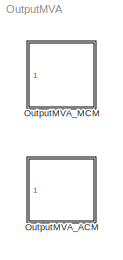
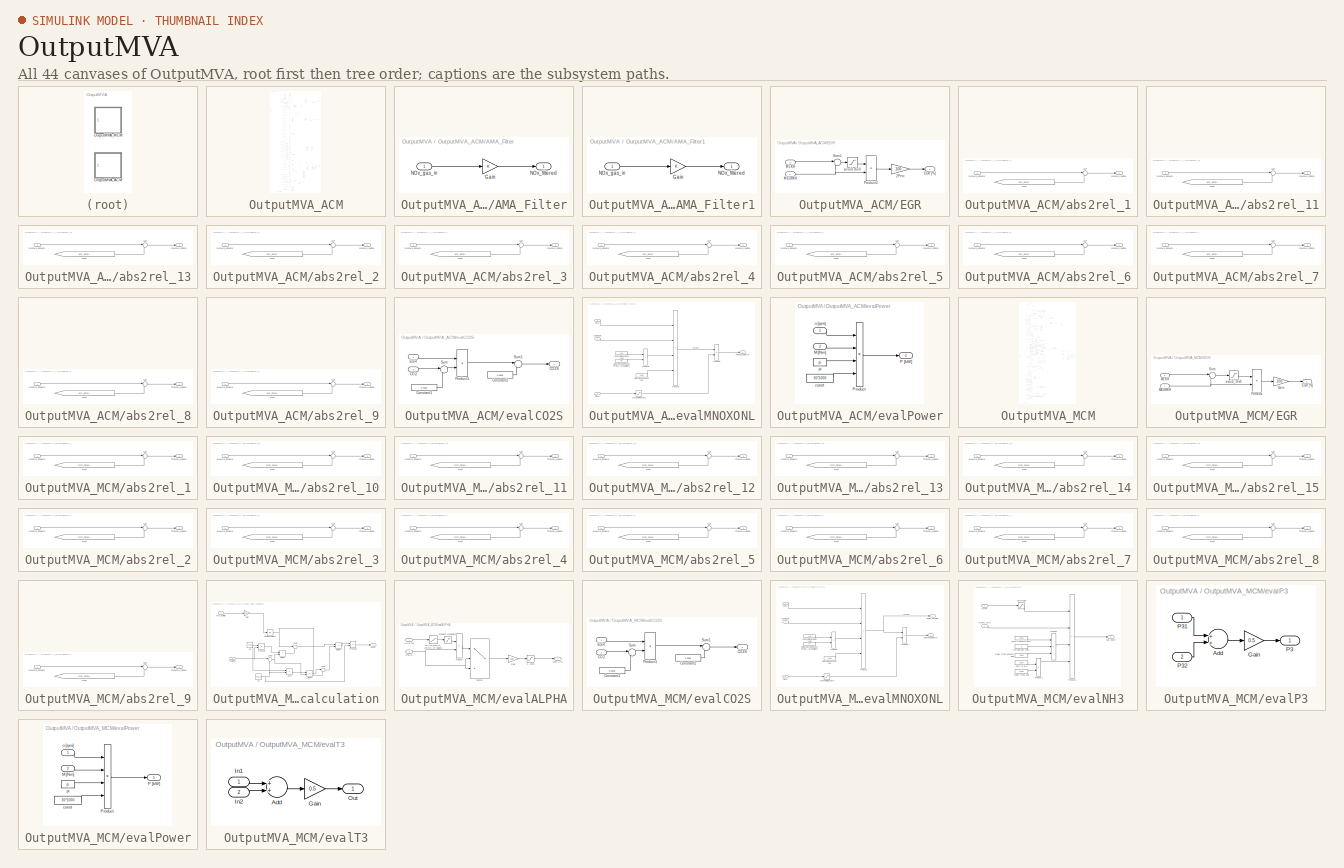
[diagram: thumbnail index - all 44 canvases of the model, root first then tree order]
MODEL OutputMVA
KIND model
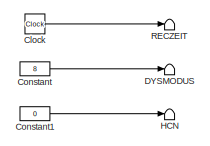
[diagram: OutputMVA_ACM - part 1/3, top center region]
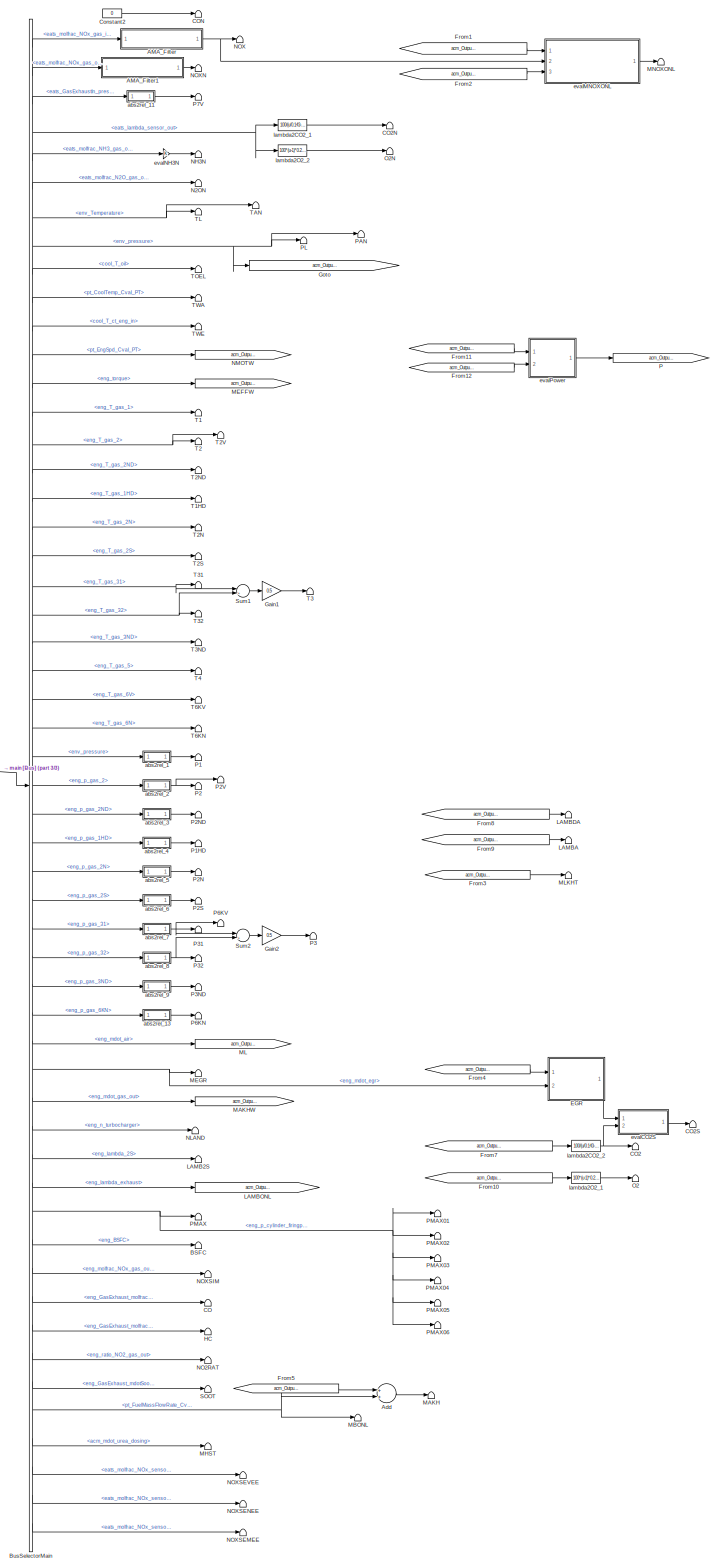
[diagram: OutputMVA_ACM - part 2/3, most of the canvas]
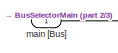
[diagram: OutputMVA_ACM - part 3/3, top left region]
BLOCK [SubSystem] OutputMVA_ACM
  CopyFcn = spsBusSelectorCleanup(gcb,sMP)
  Ports = [1]
  RequestExecContextInheritance = off
  SID = 469
  Variant = off
BLOCK [SubSystem] OutputMVA_ACM/AMA_Filter
  Ports = [1, 1]
  RequestExecContextInheritance = off
  SID = 1829
  Variant = off
BLOCK [Gain] OutputMVA_ACM/AMA_Filter/Gain
  OutDataTypeStr = Inherit: Inherit via internal rule
  ParamDataTypeStr = Inherit: Inherit via internal rule
  SID = 1831
  SaturateOnIntegerOverflow = off
BLOCK [Outport] OutputMVA_ACM/AMA_Filter/NOx_filtered
  IconDisplay = Port number
  SID = 1832
BLOCK [Inport] OutputMVA_ACM/AMA_Filter/NOx_gas_in
  IconDisplay = Port number
  SID = 1830
BLOCK [SubSystem] OutputMVA_ACM/AMA_Filter1
  Ports = [1, 1]
  RequestExecContextInheritance = off
  SID = 1833
  Variant = off
BLOCK [Gain] OutputMVA_ACM/AMA_Filter1/Gain
  OutDataTypeStr = Inherit: Inherit via internal rule
  ParamDataTypeStr = Inherit: Inherit via internal rule
  SID = 1835
  SaturateOnIntegerOverflow = off
BLOCK [Outport] OutputMVA_ACM/AMA_Filter1/NOx_filtered
  IconDisplay = Port number
  SID = 1836
BLOCK [Inport] OutputMVA_ACM/AMA_Filter1/NOx_gas_in
  IconDisplay = Port number
  SID = 1834
BLOCK [Sum] OutputMVA_ACM/Add
  InputSameDT = off
  OutDataTypeStr = Inherit: Inherit via internal rule
  Ports = [2, 1]
  SID = 1220
  SaturateOnIntegerOverflow = off
BLOCK [Terminator] OutputMVA_ACM/BSFC
  SID = 1221
BLOCK [BusSelector] OutputMVA_ACM/BusSelectorMain
  OutputSignals = info [Bus].eats_molfrac_NOx_gas_in,info [Bus].eats_molfrac_NOx_gas_out,physics [Bus].eats_GasExhaustIn_pressure,sensor [Bus].eats_lambda_sensor_out,info [Bus].eats_molfrac_NH3_gas_out,info [Bus].eats_molfrac_N2O_gas_out,boundary [Bus].env_Temperature,boundary [Bus].env_pressure,sensor [Bus].cool_T_oil,control [Bus].pt_CoolTemp_Cval_PT,sensor [Bus].cool_T_ct_eng_in,control [Bus].pt_EngSpd_Cval_PT,s...<+1194ch>
  Ports = [1, 53]
  SID = 1222
BLOCK [Terminator] OutputMVA_ACM/CO
  SID = 1223
BLOCK [Terminator] OutputMVA_ACM/CO2
  SID = 1224
BLOCK [Terminator] OutputMVA_ACM/CO2N
  SID = 1225
BLOCK [Terminator] OutputMVA_ACM/CO2S
  SID = 1226
BLOCK [Terminator] OutputMVA_ACM/CON
  SID = 1227
BLOCK [Clock] OutputMVA_ACM/Clock
  SID = 1228
BLOCK [Constant] OutputMVA_ACM/Constant
  SID = 1229
  Value = 8
BLOCK [Constant] OutputMVA_ACM/Constant1
  SID = 1230
  Value = 0
BLOCK [Constant] OutputMVA_ACM/Constant2
  SID = 1231
  Value = 0
BLOCK [Terminator] OutputMVA_ACM/DYSMODUS
  SID = 1232
BLOCK [SubSystem] OutputMVA_ACM/EGR
  Ports = [2, 1]
  RequestExecContextInheritance = off
  SID = 1233
  Variant = off
BLOCK [Gain] OutputMVA_ACM/EGR/2Perc
  Gain = 100
  OutDataTypeStr = Inherit: Inherit via internal rule
  ParamDataTypeStr = Inherit: Inherit via internal rule
  SID = 1236
  SaturateOnIntegerOverflow = off
BLOCK [Outport] OutputMVA_ACM/EGR/EGR [%] 
  IconDisplay = Port number
  SID = 1240
BLOCK [Inport] OutputMVA_ACM/EGR/MEGRKH
  IconDisplay = Port number
  Port = 2
  SID = 1235
BLOCK [Inport] OutputMVA_ACM/EGR/MLKH
  IconDisplay = Port number
  SID = 1234
BLOCK [Product] OutputMVA_ACM/EGR/Product2
  InputSameDT = off
  Inputs = /*
  OutDataTypeStr = Inherit: Inherit via internal rule
  Ports = [2, 1]
  SID = 1237
  SaturateOnIntegerOverflow = off
BLOCK [Sum] OutputMVA_ACM/EGR/Sum1
  IconShape = round
  InputSameDT = off
  Inputs = |++
  OutDataTypeStr = Inherit: Inherit via internal rule
  Ports = [2, 1]
  SID = 1238
  SaturateOnIntegerOverflow = off
BLOCK [Saturate] OutputMVA_ACM/EGR/avoid div0
  InputPortMap = u0
  LowerLimit = 0.000001
  Ports = [1, 1]
  SID = 1239
  UpperLimit = inf
BLOCK [From] OutputMVA_ACM/From1
  GotoTag = acm_OutputMVA_MAKH
  SID = 1241
  TagVisibility = global
BLOCK [From] OutputMVA_ACM/From10
  GotoTag = acm_OutputMVA_LAMBONLINE
  SID = 1242
  TagVisibility = global
BLOCK [From] OutputMVA_ACM/From11
  GotoTag = acm_OutputMVA_NMOTW
  SID = 1243
  TagVisibility = global
BLOCK [From] OutputMVA_ACM/From12
  GotoTag = acm_OutputMVA_MEFFW
  SID = 1244
  TagVisibility = global
BLOCK [From] OutputMVA_ACM/From2
  GotoTag = acm_OutputMVA_P
  SID = 1245
  TagVisibility = global
BLOCK [From] OutputMVA_ACM/From3
  GotoTag = acm_OutputMVA_MLONL
  SID = 1246
  TagVisibility = global
BLOCK [From] OutputMVA_ACM/From4
  GotoTag = acm_OutputMVA_MLONL
  SID = 1247
  TagVisibility = global
BLOCK [From] OutputMVA_ACM/From5
  GotoTag = acm_OutputMVA_MLONL
  SID = 1248
BLOCK [From] OutputMVA_ACM/From7
  GotoTag = acm_OutputMVA_LAMBONLINE
  SID = 1249
  TagVisibility = global
BLOCK [From] OutputMVA_ACM/From8
  GotoTag = acm_OutputMVA_LAMBONLINE
  SID = 1250
  TagVisibility = global
BLOCK [From] OutputMVA_ACM/From9
  GotoTag = acm_OutputMVA_LAMBONLINE
  SID = 1251
  TagVisibility = global
BLOCK [Gain] OutputMVA_ACM/Gain1
  Gain = 0.5
  OutDataTypeStr = Inherit: Inherit via internal rule
  ParamDataTypeStr = Inherit: Inherit via internal rule
  SID = 1252
  SaturateOnIntegerOverflow = off
BLOCK [Gain] OutputMVA_ACM/Gain2
  Gain = 0.5
  OutDataTypeStr = Inherit: Inherit via internal rule
  ParamDataTypeStr = Inherit: Inherit via internal rule
  SID = 1253
  SaturateOnIntegerOverflow = off
BLOCK [Goto] OutputMVA_ACM/Goto
  GotoTag = acm_OutputMVA_PressureReference
  SID = 1254
  TagVisibility = global
BLOCK [Terminator] OutputMVA_ACM/HC
  SID = 1255
BLOCK [Terminator] OutputMVA_ACM/HCN
  SID = 1256
BLOCK [Terminator] OutputMVA_ACM/LAMB2S
  SID = 1257
BLOCK [Terminator] OutputMVA_ACM/LAMBA
  SID = 1258
BLOCK [Terminator] OutputMVA_ACM/LAMBDA
  SID = 1259
BLOCK [Goto] OutputMVA_ACM/LAMBONL
  GotoTag = acm_OutputMVA_LAMBONLINE
  SID = 1260
  TagVisibility = global
BLOCK [Terminator] OutputMVA_ACM/MAKH
  SID = 1261
BLOCK [Goto] OutputMVA_ACM/MAKHW
  GotoTag = acm_OutputMVA_MAKH
  SID = 1262
  TagVisibility = global
BLOCK [Terminator] OutputMVA_ACM/MBONL
  SID = 1263
BLOCK [Goto] OutputMVA_ACM/MEFFW
  GotoTag = acm_OutputMVA_MEFFW
  SID = 1264
  TagVisibility = global
BLOCK [Terminator] OutputMVA_ACM/MEGR
  SID = 1265
BLOCK [Terminator] OutputMVA_ACM/MHST
  SID = 1266
BLOCK [Goto] OutputMVA_ACM/ML
  GotoTag = acm_OutputMVA_MLONL
  SID = 1267
  TagVisibility = global
BLOCK [Terminator] OutputMVA_ACM/MLKHT
  SID = 1268
BLOCK [Terminator] OutputMVA_ACM/MNOXONL
  SID = 1269
BLOCK [Terminator] OutputMVA_ACM/N2ON
  SID = 1270
BLOCK [Terminator] OutputMVA_ACM/NH3N
  SID = 1271
BLOCK [Terminator] OutputMVA_ACM/NLAND
  SID = 1272
BLOCK [Goto] OutputMVA_ACM/NMOTW
  GotoTag = acm_OutputMVA_NMOTW
  SID = 1273
  TagVisibility = global
BLOCK [Terminator] OutputMVA_ACM/NO2RAT
  SID = 1274
BLOCK [Terminator] OutputMVA_ACM/NOX
  SID = 1275
BLOCK [Terminator] OutputMVA_ACM/NOXN
  SID = 1277
BLOCK [Terminator] OutputMVA_ACM/NOXSEMEE
  SID = 2034
BLOCK [Terminator] OutputMVA_ACM/NOXSENEE
  SID = 1278
BLOCK [Terminator] OutputMVA_ACM/NOXSEVEE
  SID = 1276
BLOCK [Terminator] OutputMVA_ACM/NOXSIM
  SID = 1279
BLOCK [Terminator] OutputMVA_ACM/O2
  SID = 1280
BLOCK [Terminator] OutputMVA_ACM/O2N
  SID = 1281
BLOCK [Goto] OutputMVA_ACM/P
  GotoTag = acm_OutputMVA_P
  SID = 1282
  TagVisibility = global
BLOCK [Terminator] OutputMVA_ACM/P1
  SID = 1283
BLOCK [Terminator] OutputMVA_ACM/P1HD
  SID = 1284
BLOCK [Terminator] OutputMVA_ACM/P2
  SID = 1285
BLOCK [Terminator] OutputMVA_ACM/P2N
  SID = 1286
BLOCK [Terminator] OutputMVA_ACM/P2ND
  SID = 1287
BLOCK [Terminator] OutputMVA_ACM/P2S
  SID = 1288
BLOCK [Terminator] OutputMVA_ACM/P2V
  SID = 1289
BLOCK [Terminator] OutputMVA_ACM/P3
  SID = 1290
BLOCK [Terminator] OutputMVA_ACM/P31
  SID = 1291
BLOCK [Terminator] OutputMVA_ACM/P32
  SID = 1292
BLOCK [Terminator] OutputMVA_ACM/P3ND
  SID = 1293
BLOCK [Terminator] OutputMVA_ACM/P6KN
  SID = 1294
BLOCK [Terminator] OutputMVA_ACM/P6KV
  SID = 1295
BLOCK [Terminator] OutputMVA_ACM/P7V
  SID = 1296
BLOCK [Terminator] OutputMVA_ACM/PAN
  SID = 1297
BLOCK [Terminator] OutputMVA_ACM/PL
  SID = 1298
BLOCK [Terminator] OutputMVA_ACM/PMAX
  SID = 1299
BLOCK [Terminator] OutputMVA_ACM/PMAX01
  SID = 1300
BLOCK [Terminator] OutputMVA_ACM/PMAX02
  SID = 1301
BLOCK [Terminator] OutputMVA_ACM/PMAX03
  SID = 1302
BLOCK [Terminator] OutputMVA_ACM/PMAX04
  SID = 1303
BLOCK [Terminator] OutputMVA_ACM/PMAX05
  SID = 1304
BLOCK [Terminator] OutputMVA_ACM/PMAX06
  SID = 1305
BLOCK [Terminator] OutputMVA_ACM/RECZEIT
  SID = 1306
BLOCK [Terminator] OutputMVA_ACM/SOOT
  SID = 1307
BLOCK [Sum] OutputMVA_ACM/Sum1
  IconShape = round
  InputSameDT = off
  Inputs = |++
  OutDataTypeStr = Inherit: Inherit via internal rule
  Ports = [2, 1]
  SID = 1308
  SaturateOnIntegerOverflow = off
BLOCK [Sum] OutputMVA_ACM/Sum2
  IconShape = round
  InputSameDT = off
  Inputs = |++
  OutDataTypeStr = Inherit: Inherit via internal rule
  Ports = [2, 1]
  SID = 1309
  SaturateOnIntegerOverflow = off
BLOCK [Terminator] OutputMVA_ACM/T1
  SID = 1310
BLOCK [Terminator] OutputMVA_ACM/T1HD
  SID = 1311
BLOCK [Terminator] OutputMVA_ACM/T2
  SID = 1312
BLOCK [Terminator] OutputMVA_ACM/T2N
  SID = 1313
BLOCK [Terminator] OutputMVA_ACM/T2ND
  SID = 1314
BLOCK [Terminator] OutputMVA_ACM/T2S
  SID = 1315
BLOCK [Terminator] OutputMVA_ACM/T2V
  SID = 1316
BLOCK [Terminator] OutputMVA_ACM/T3
  SID = 1317
BLOCK [Terminator] OutputMVA_ACM/T31
  SID = 1318
BLOCK [Terminator] OutputMVA_ACM/T32
  SID = 1319
BLOCK [Terminator] OutputMVA_ACM/T3ND
  SID = 1320
BLOCK [Terminator] OutputMVA_ACM/T4
  SID = 1321
BLOCK [Terminator] OutputMVA_ACM/T6KN
  SID = 1322
BLOCK [Terminator] OutputMVA_ACM/T6KV
  SID = 1323
BLOCK [Terminator] OutputMVA_ACM/TAN
  SID = 1324
BLOCK [Terminator] OutputMVA_ACM/TL
  SID = 1325
BLOCK [Terminator] OutputMVA_ACM/TOEL
  SID = 1326
BLOCK [Terminator] OutputMVA_ACM/TWA
  SID = 1327
BLOCK [Terminator] OutputMVA_ACM/TWE
  SID = 1328
BLOCK [SubSystem] OutputMVA_ACM/abs2rel_1
  Ports = [1, 1]
  RequestExecContextInheritance = off
  SID = 1329
  ShowPortLabels = none
  Variant = off
BLOCK [From] OutputMVA_ACM/abs2rel_1/From
  GotoTag = acm_OutputMVA_PressureReference
  SID = 1331
  TagVisibility = global
BLOCK [Sum] OutputMVA_ACM/abs2rel_1/Sum
  IconShape = round
  InputSameDT = off
  Inputs = |+-
  OutDataTypeStr = Inherit: Inherit via internal rule
  Ports = [2, 1]
  SID = 1332
  SaturateOnIntegerOverflow = off
BLOCK [Inport] OutputMVA_ACM/abs2rel_1/pressure_absolute
  IconDisplay = Port number
  SID = 1330
BLOCK [Outport] OutputMVA_ACM/abs2rel_1/pressure_relative
  IconDisplay = Port number
  SID = 1333
BLOCK [SubSystem] OutputMVA_ACM/abs2rel_11
  Ports = [1, 1]
  RequestExecContextInheritance = off
  SID = 1334
  ShowPortLabels = none
  Variant = off
BLOCK [From] OutputMVA_ACM/abs2rel_11/From
  GotoTag = acm_OutputMVA_PressureReference
  SID = 1336
  TagVisibility = global
BLOCK [Sum] OutputMVA_ACM/abs2rel_11/Sum
  IconShape = round
  InputSameDT = off
  Inputs = |+-
  OutDataTypeStr = Inherit: Inherit via internal rule
  Ports = [2, 1]
  SID = 1337
  SaturateOnIntegerOverflow = off
BLOCK [Inport] OutputMVA_ACM/abs2rel_11/pressure_absolute
  IconDisplay = Port number
  SID = 1335
BLOCK [Outport] OutputMVA_ACM/abs2rel_11/pressure_relative
  IconDisplay = Port number
  SID = 1338
BLOCK [SubSystem] OutputMVA_ACM/abs2rel_13
  Ports = [1, 1]
  RequestExecContextInheritance = off
  SID = 1339
  ShowPortLabels = none
  Variant = off
BLOCK [From] OutputMVA_ACM/abs2rel_13/From
  GotoTag = acm_OutputMVA_PressureReference
  SID = 1341
  TagVisibility = global
BLOCK [Sum] OutputMVA_ACM/abs2rel_13/Sum
  IconShape = round
  InputSameDT = off
  Inputs = |+-
  OutDataTypeStr = Inherit: Inherit via internal rule
  Ports = [2, 1]
  SID = 1342
  SaturateOnIntegerOverflow = off
BLOCK [Inport] OutputMVA_ACM/abs2rel_13/pressure_absolute
  IconDisplay = Port number
  SID = 1340
BLOCK [Outport] OutputMVA_ACM/abs2rel_13/pressure_relative
  IconDisplay = Port number
  SID = 1343
BLOCK [SubSystem] OutputMVA_ACM/abs2rel_2
  Ports = [1, 1]
  RequestExecContextInheritance = off
  SID = 1344
  ShowPortLabels = none
  Variant = off
BLOCK [From] OutputMVA_ACM/abs2rel_2/From
  GotoTag = acm_OutputMVA_PressureReference
  SID = 1346
  TagVisibility = global
BLOCK [Sum] OutputMVA_ACM/abs2rel_2/Sum
  IconShape = round
  InputSameDT = off
  Inputs = |+-
  OutDataTypeStr = Inherit: Inherit via internal rule
  Ports = [2, 1]
  SID = 1347
  SaturateOnIntegerOverflow = off
BLOCK [Inport] OutputMVA_ACM/abs2rel_2/pressure_absolute
  IconDisplay = Port number
  SID = 1345
BLOCK [Outport] OutputMVA_ACM/abs2rel_2/pressure_relative
  IconDisplay = Port number
  SID = 1348
BLOCK [SubSystem] OutputMVA_ACM/abs2rel_3
  Ports = [1, 1]
  RequestExecContextInheritance = off
  SID = 1349
  ShowPortLabels = none
  Variant = off
BLOCK [From] OutputMVA_ACM/abs2rel_3/From
  GotoTag = acm_OutputMVA_PressureReference
  SID = 1351
  TagVisibility = global
BLOCK [Sum] OutputMVA_ACM/abs2rel_3/Sum
  IconShape = round
  InputSameDT = off
  Inputs = |+-
  OutDataTypeStr = Inherit: Inherit via internal rule
  Ports = [2, 1]
  SID = 1352
  SaturateOnIntegerOverflow = off
BLOCK [Inport] OutputMVA_ACM/abs2rel_3/pressure_absolute
  IconDisplay = Port number
  SID = 1350
BLOCK [Outport] OutputMVA_ACM/abs2rel_3/pressure_relative
  IconDisplay = Port number
  SID = 1353
BLOCK [SubSystem] OutputMVA_ACM/abs2rel_4
  Ports = [1, 1]
  RequestExecContextInheritance = off
  SID = 1354
  ShowPortLabels = none
  Variant = off
BLOCK [From] OutputMVA_ACM/abs2rel_4/From
  GotoTag = acm_OutputMVA_PressureReference
  SID = 1356
  TagVisibility = global
BLOCK [Sum] OutputMVA_ACM/abs2rel_4/Sum
  IconShape = round
  InputSameDT = off
  Inputs = |+-
  OutDataTypeStr = Inherit: Inherit via internal rule
  Ports = [2, 1]
  SID = 1357
  SaturateOnIntegerOverflow = off
BLOCK [Inport] OutputMVA_ACM/abs2rel_4/pressure_absolute
  IconDisplay = Port number
  SID = 1355
BLOCK [Outport] OutputMVA_ACM/abs2rel_4/pressure_relative
  IconDisplay = Port number
  SID = 1358
BLOCK [SubSystem] OutputMVA_ACM/abs2rel_5
  Ports = [1, 1]
  RequestExecContextInheritance = off
  SID = 1359
  ShowPortLabels = none
  Variant = off
BLOCK [From] OutputMVA_ACM/abs2rel_5/From
  GotoTag = acm_OutputMVA_PressureReference
  SID = 1361
  TagVisibility = global
BLOCK [Sum] OutputMVA_ACM/abs2rel_5/Sum
  IconShape = round
  InputSameDT = off
  Inputs = |+-
  OutDataTypeStr = Inherit: Inherit via internal rule
  Ports = [2, 1]
  SID = 1362
  SaturateOnIntegerOverflow = off
BLOCK [Inport] OutputMVA_ACM/abs2rel_5/pressure_absolute
  IconDisplay = Port number
  SID = 1360
BLOCK [Outport] OutputMVA_ACM/abs2rel_5/pressure_relative
  IconDisplay = Port number
  SID = 1363
BLOCK [SubSystem] OutputMVA_ACM/abs2rel_6
  Ports = [1, 1]
  RequestExecContextInheritance = off
  SID = 1364
  ShowPortLabels = none
  Variant = off
BLOCK [From] OutputMVA_ACM/abs2rel_6/From
  GotoTag = acm_OutputMVA_PressureReference
  SID = 1366
  TagVisibility = global
BLOCK [Sum] OutputMVA_ACM/abs2rel_6/Sum
  IconShape = round
  InputSameDT = off
  Inputs = |+-
  OutDataTypeStr = Inherit: Inherit via internal rule
  Ports = [2, 1]
  SID = 1367
  SaturateOnIntegerOverflow = off
BLOCK [Inport] OutputMVA_ACM/abs2rel_6/pressure_absolute
  IconDisplay = Port number
  SID = 1365
BLOCK [Outport] OutputMVA_ACM/abs2rel_6/pressure_relative
  IconDisplay = Port number
  SID = 1368
BLOCK [SubSystem] OutputMVA_ACM/abs2rel_7
  Ports = [1, 1]
  RequestExecContextInheritance = off
  SID = 1369
  ShowPortLabels = none
  Variant = off
BLOCK [From] OutputMVA_ACM/abs2rel_7/From
  GotoTag = acm_OutputMVA_PressureReference
  SID = 1371
  TagVisibility = global
BLOCK [Sum] OutputMVA_ACM/abs2rel_7/Sum
  IconShape = round
  InputSameDT = off
  Inputs = |+-
  OutDataTypeStr = Inherit: Inherit via internal rule
  Ports = [2, 1]
  SID = 1372
  SaturateOnIntegerOverflow = off
BLOCK [Inport] OutputMVA_ACM/abs2rel_7/pressure_absolute
  IconDisplay = Port number
  SID = 1370
BLOCK [Outport] OutputMVA_ACM/abs2rel_7/pressure_relative
  IconDisplay = Port number
  SID = 1373
BLOCK [SubSystem] OutputMVA_ACM/abs2rel_8
  Ports = [1, 1]
  RequestExecContextInheritance = off
  SID = 1374
  ShowPortLabels = none
  Variant = off
BLOCK [From] OutputMVA_ACM/abs2rel_8/From
  GotoTag = acm_OutputMVA_PressureReference
  SID = 1376
  TagVisibility = global
BLOCK [Sum] OutputMVA_ACM/abs2rel_8/Sum
  IconShape = round
  InputSameDT = off
  Inputs = |+-
  OutDataTypeStr = Inherit: Inherit via internal rule
  Ports = [2, 1]
  SID = 1377
  SaturateOnIntegerOverflow = off
BLOCK [Inport] OutputMVA_ACM/abs2rel_8/pressure_absolute
  IconDisplay = Port number
  SID = 1375
BLOCK [Outport] OutputMVA_ACM/abs2rel_8/pressure_relative
  IconDisplay = Port number
  SID = 1378
BLOCK [SubSystem] OutputMVA_ACM/abs2rel_9
  Ports = [1, 1]
  RequestExecContextInheritance = off
  SID = 1379
  ShowPortLabels = none
  Variant = off
BLOCK [From] OutputMVA_ACM/abs2rel_9/From
  GotoTag = acm_OutputMVA_PressureReference
  SID = 1381
  TagVisibility = global
BLOCK [Sum] OutputMVA_ACM/abs2rel_9/Sum
  IconShape = round
  InputSameDT = off
  Inputs = |+-
  OutDataTypeStr = Inherit: Inherit via internal rule
  Ports = [2, 1]
  SID = 1382
  SaturateOnIntegerOverflow = off
BLOCK [Inport] OutputMVA_ACM/abs2rel_9/pressure_absolute
  IconDisplay = Port number
  SID = 1380
BLOCK [Outport] OutputMVA_ACM/abs2rel_9/pressure_relative
  IconDisplay = Port number
  SID = 1383
BLOCK [SubSystem] OutputMVA_ACM/evalCO2S
  Ports = [2, 1]
  RequestExecContextInheritance = off
  SID = 1384
  Variant = off
BLOCK [Inport] OutputMVA_ACM/evalCO2S/CO2
  IconDisplay = Port number
  Port = 2
  SID = 1386
BLOCK [Outport] OutputMVA_ACM/evalCO2S/CO2S
  IconDisplay = Port number
  SID = 1392
BLOCK [Constant] OutputMVA_ACM/evalCO2S/Constant1
  SID = 1387
  Value = 0.0003
BLOCK [Constant] OutputMVA_ACM/evalCO2S/Constant2
  SID = 1388
  Value = 0.0003
BLOCK [Inport] OutputMVA_ACM/evalCO2S/EGR
  IconDisplay = Port number
  SID = 1385
BLOCK [Product] OutputMVA_ACM/evalCO2S/Product1
  InputSameDT = off
  OutDataTypeStr = Inherit: Inherit via internal rule
  Ports = [2, 1]
  SID = 1389
  SaturateOnIntegerOverflow = off
BLOCK [Sum] OutputMVA_ACM/evalCO2S/Sum
  IconShape = round
  InputSameDT = off
  Inputs = |+-
  OutDataTypeStr = Inherit: Inherit via internal rule
  Ports = [2, 1]
  SID = 1390
  SaturateOnIntegerOverflow = off
BLOCK [Sum] OutputMVA_ACM/evalCO2S/Sum1
  IconShape = round
  InputSameDT = off
  Inputs = |++
  OutDataTypeStr = Inherit: Inherit via internal rule
  Ports = [2, 1]
  SID = 1391
  SaturateOnIntegerOverflow = off
BLOCK [SubSystem] OutputMVA_ACM/evalMNOXONL
  Ports = [3, 1]
  RequestExecContextInheritance = off
  SID = 1393
  Variant = off
BLOCK [Inport] OutputMVA_ACM/evalMNOXONL/MAKH
  IconDisplay = Port number
  SID = 1394
BLOCK [Constant] OutputMVA_ACM/evalMNOXONL/Molar mass NO2\nused for NOx according regulations
  SID = 1397
  Value = 46
BLOCK [Constant] OutputMVA_ACM/evalMNOXONL/Molar mass exhaust gas
  SID = 1398
  Value = 28.96
BLOCK [Inport] OutputMVA_ACM/evalMNOXONL/P [kW]
  IconDisplay = Port number
  Port = 3
  SID = 1396
BLOCK [Product] OutputMVA_ACM/evalMNOXONL/Product1
  InputSameDT = off
  Inputs = ***/
  OutDataTypeStr = Inherit: Inherit via internal rule
  Ports = [4, 1]
  SID = 1399
  SaturateOnIntegerOverflow = off
BLOCK [Product] OutputMVA_ACM/evalMNOXONL/Product2
  InputSameDT = off
  Inputs = */
  OutDataTypeStr = Inherit: Inherit via internal rule
  Ports = [2, 1]
  SID = 1400
  SaturateOnIntegerOverflow = off
BLOCK [Product] OutputMVA_ACM/evalMNOXONL/Product3
  InputSameDT = off
  OutDataTypeStr = Inherit: Inherit via internal rule
  Ports = [2, 1]
  SID = 1401
  SaturateOnIntegerOverflow = off
BLOCK [Inport] OutputMVA_ACM/evalMNOXONL/cNOX [ppm]
  IconDisplay = Port number
  Port = 2
  SID = 1395
BLOCK [Outport] OutputMVA_ACM/evalMNOXONL/mNH3spec [g//kWh] 
  IconDisplay = Port number
  SID = 1404
BLOCK [Constant] OutputMVA_ACM/evalMNOXONL/ppm >> molfrac & kg//h >> g//h
  SID = 1402
  Value = 1e-3
BLOCK [Saturate] OutputMVA_ACM/evalMNOXONL/prevent DivByZero
  InputPortMap = u0
  LowerLimit = 1e-6
  Ports = [1, 1]
  SID = 1403
  UpperLimit = inf
BLOCK [Gain] OutputMVA_ACM/evalNH3N
  OutDataTypeStr = Inherit: Inherit via internal rule
  ParamDataTypeStr = Inherit: Inherit via internal rule
  SID = 1405
  SaturateOnIntegerOverflow = off
BLOCK [SubSystem] OutputMVA_ACM/evalPower
  Ports = [2, 1]
  RequestExecContextInheritance = off
  SID = 1406
  Variant = off
BLOCK [Inport] OutputMVA_ACM/evalPower/M [Nm]
  IconDisplay = Port number
  Port = 2
  SID = 1408
BLOCK [Outport] OutputMVA_ACM/evalPower/P [kW]
  IconDisplay = Port number
  SID = 1412
BLOCK [Product] OutputMVA_ACM/evalPower/Product
  InputSameDT = off
  Inputs = ***/
  OutDataTypeStr = Inherit: Inherit via internal rule
  Ports = [4, 1]
  SID = 1409
  SaturateOnIntegerOverflow = off
BLOCK [Constant] OutputMVA_ACM/evalPower/const
  SID = 1410
  Value = 30*1000
BLOCK [Inport] OutputMVA_ACM/evalPower/n [rpm]
  IconDisplay = Port number
  SID = 1407
BLOCK [Constant] OutputMVA_ACM/evalPower/pi
  SID = 1411
  Value = pi
BLOCK [Fcn] OutputMVA_ACM/lambda2CO2_1
  Expr = 100/(u/0.143-0.466)
  SID = 1413
BLOCK [Fcn] OutputMVA_ACM/lambda2CO2_2
  Expr = 100/(u/0.143-0.466)
  SID = 1414
BLOCK [Fcn] OutputMVA_ACM/lambda2O2_1
  Expr = 100*(u-1)*0.2099/(u+1/14.5)
  SID = 1415
BLOCK [Fcn] OutputMVA_ACM/lambda2O2_2
  Expr = 100*(u-1)*0.2099/(u+1/14.5)
  SID = 1416
BLOCK [Inport] OutputMVA_ACM/main [Bus]
  IconDisplay = Port number
  SID = 1219
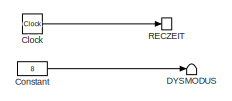
[diagram: OutputMVA_MCM - part 1/4, top left region]
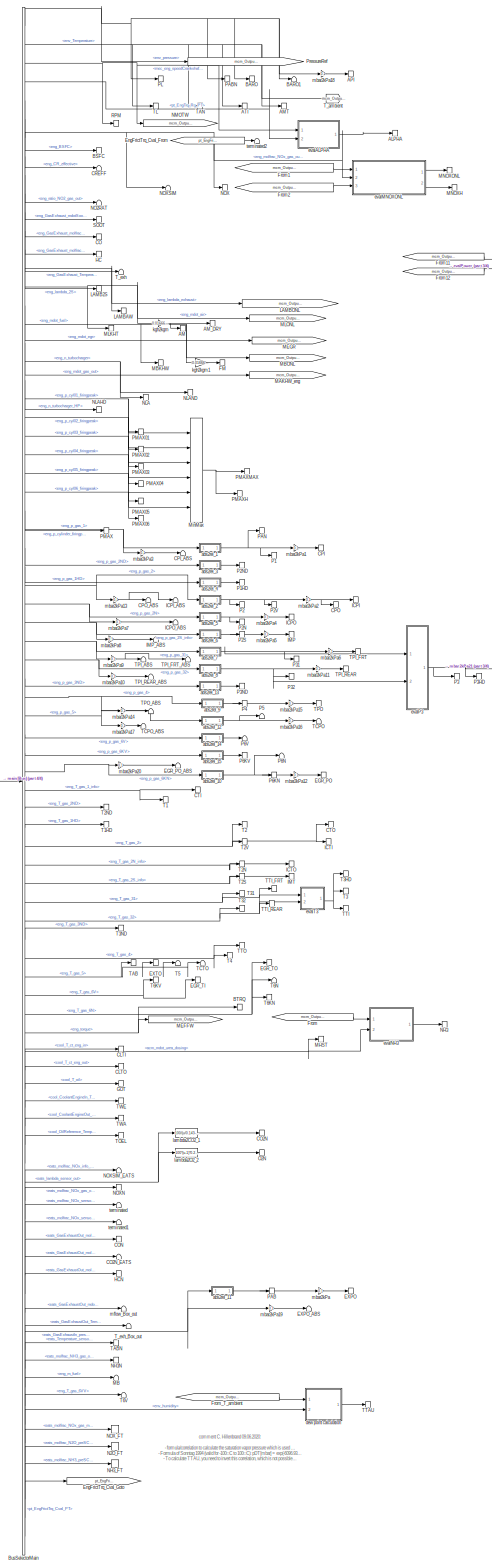
[diagram: OutputMVA_MCM - part 2/4, center side, full height]
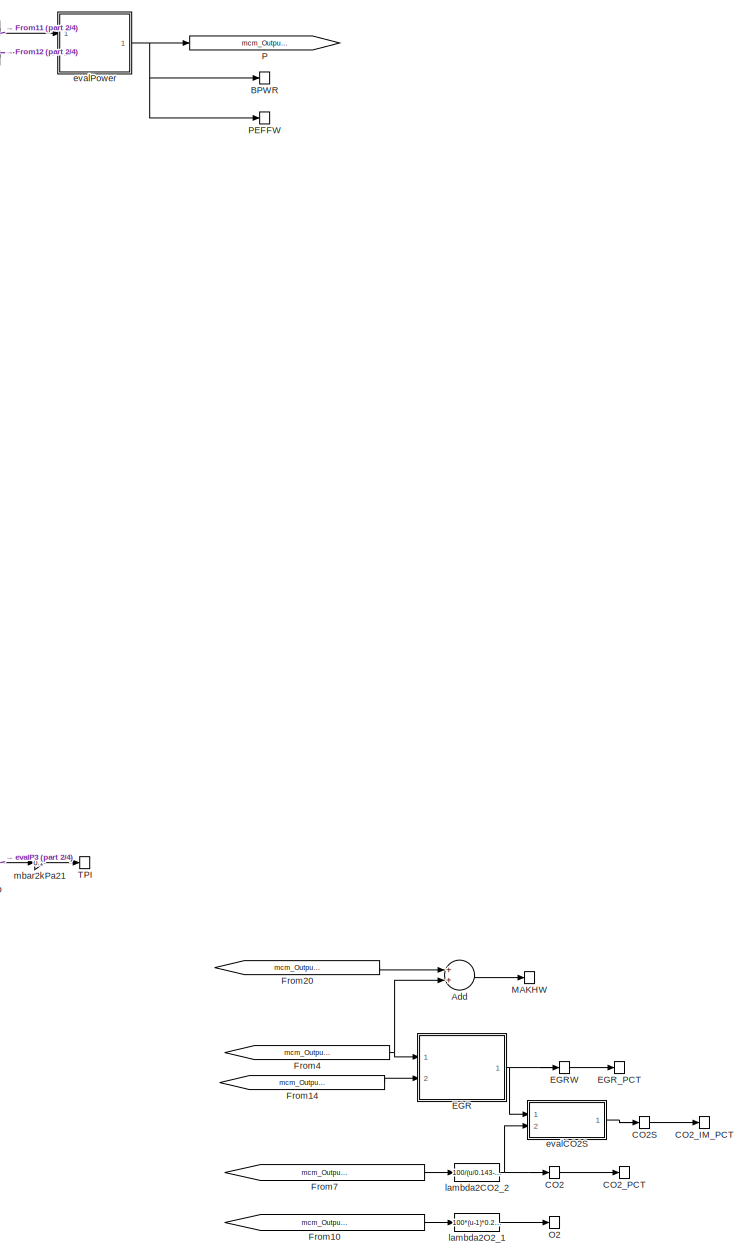
[diagram: OutputMVA_MCM - part 3/4, middle right region]
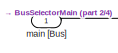
[diagram: OutputMVA_MCM - part 4/4, middle left region]
BLOCK [SubSystem] OutputMVA_MCM
  CopyFcn = spsBusSelectorCleanup(gcb,sMP)
  Ports = [1]
  RequestExecContextInheritance = off
  SID = 1
  Variant = off
BLOCK [M-S-Function] OutputMVA_MCM/ALPHA
  FunctionName = msfcn_deadend
  Ports = [1]
  SID = 2049
  Tag = VTOS_ALPHA
BLOCK [M-S-Function] OutputMVA_MCM/AM
  FunctionName = msfcn_deadend
  Ports = [1]
  SID = 2050
  Tag = VTOS_AM
BLOCK [M-S-Function] OutputMVA_MCM/AMT
  FunctionName = msfcn_deadend
  Ports = [1]
  SID = 2051
  Tag = VTOS_AMT
BLOCK [M-S-Function] OutputMVA_MCM/AM_DRY
  FunctionName = msfcn_deadend
  Ports = [1]
  SID = 2052
  Tag = VTOS_AM_DRY
BLOCK [M-S-Function] OutputMVA_MCM/API
  FunctionName = msfcn_deadend
  Ports = [1]
  SID = 2053
  Tag = VTOS_API
BLOCK [M-S-Function] OutputMVA_MCM/ATI
  FunctionName = msfcn_deadend
  Ports = [1]
  SID = 2054
  Tag = VTOS_ATI
BLOCK [Sum] OutputMVA_MCM/Add
  InputSameDT = off
  OutDataTypeStr = Inherit: Inherit via internal rule
  Ports = [2, 1]
  SID = 1424
  SaturateOnIntegerOverflow = off
BLOCK [M-S-Function] OutputMVA_MCM/BARO
  FunctionName = msfcn_deadend
  Ports = [1]
  SID = 2055
  Tag = VTOS_BARO
BLOCK [Terminator] OutputMVA_MCM/BARO1
  SID = 2223
BLOCK [M-S-Function] OutputMVA_MCM/BPWR
  FunctionName = msfcn_deadend
  Ports = [1]
  SID = 2057
  Tag = VTOS_BPWR
BLOCK [M-S-Function] OutputMVA_MCM/BSFC
  FunctionName = msfcn_deadend
  Ports = [1]
  SID = 2058
  Tag = VTOS_BSFC
BLOCK [M-S-Function] OutputMVA_MCM/BTRQ
  FunctionName = msfcn_deadend
  Ports = [1]
  SID = 2059
  Tag = VTOS_BTRQ
BLOCK [BusSelector] OutputMVA_MCM/BusSelectorMain
  OutputSignals = boundary [Bus].env_pressure,boundary [Bus].env_Temperature,sensor [Bus].mec_eng_speedCrankshaft,control [Bus].pt_EngTrq_Rq_PT,info [Bus].eng_BSFC,info [Bus].eng_CR_effective,sensor [Bus].eng_molfrac_NOx_gas_out,info [Bus].eng_ratio_NO2_gas_out,physics [Bus].eng_GasExhaust_mdotSoot,physics [Bus].eng_GasExhaust_molfracCO,physics [Bus].eng_GasExhaust_molfracHC1,physics [Bus].eng_GasExhaust_Temperatur...<+2198ch>
  Ports = [1, 82]
  SID = 1853
BLOCK [M-S-Function] OutputMVA_MCM/CLTI
  FunctionName = msfcn_deadend
  Ports = [1]
  SID = 2060
  Tag = VTOS_CLTI
BLOCK [M-S-Function] OutputMVA_MCM/CLTO
  FunctionName = msfcn_deadend
  Ports = [1]
  SID = 2061
  Tag = VTOS_CLTO
BLOCK [M-S-Function] OutputMVA_MCM/CO
  FunctionName = msfcn_deadend
  Ports = [1]
  SID = 2062
  Tag = VTOS_CO
BLOCK [M-S-Function] OutputMVA_MCM/CO2
  FunctionName = msfcn_deadend
  Ports = [1]
  SID = 2063
  Tag = VTOS_CO2
BLOCK [M-S-Function] OutputMVA_MCM/CO2N
  FunctionName = msfcn_deadend
  Ports = [1]
  SID = 2064
  Tag = VTOS_CO2N
BLOCK [Terminator] OutputMVA_MCM/CO2N_EATS
  SID = 2218
BLOCK [M-S-Function] OutputMVA_MCM/CO2S
  FunctionName = msfcn_deadend
  Ports = [1]
  SID = 2066
  Tag = VTOS_CO2S
BLOCK [M-S-Function] OutputMVA_MCM/CO2_IM_PCT
  FunctionName = msfcn_deadend
  Ports = [1]
  SID = 2067
  Tag = VTOS_CO2_IM_PCT
BLOCK [M-S-Function] OutputMVA_MCM/CO2_PCT
  FunctionName = msfcn_deadend
  Ports = [1]
  SID = 2068
  Tag = VTOS_CO2_PCT
BLOCK [M-S-Function] OutputMVA_MCM/CON
  FunctionName = msfcn_deadend
  Ports = [1]
  SID = 2069
  Tag = VTOS_CON
BLOCK [M-S-Function] OutputMVA_MCM/CPI
  FunctionName = msfcn_deadend
  Ports = [1]
  SID = 2070
  Tag = VTOS_CPI
BLOCK [Terminator] OutputMVA_MCM/CPI_ABS
  SID = 2206
BLOCK [M-S-Function] OutputMVA_MCM/CPO
  FunctionName = msfcn_deadend
  Ports = [1]
  SID = 2250
  Tag = VTOS_CPO
BLOCK [Terminator] OutputMVA_MCM/CPO_ABS
  SID = 2207
BLOCK [Terminator] OutputMVA_MCM/CREFF
  SID = 2202
BLOCK [M-S-Function] OutputMVA_MCM/CTI
  FunctionName = msfcn_deadend
  Ports = [1]
  SID = 2075
  Tag = VTOS_CTI
BLOCK [M-S-Function] OutputMVA_MCM/CTO
  FunctionName = msfcn_deadend
  Ports = [1]
  SID = 2252
  Tag = VTOS_CTO
BLOCK [Clock] OutputMVA_MCM/Clock
  SID = 1453
BLOCK [Constant] OutputMVA_MCM/Constant
  SID = 1454
  Value = 8
BLOCK [Terminator] OutputMVA_MCM/DYSMODUS
  SID = 2201
BLOCK [SubSystem] OutputMVA_MCM/EGR
  Ports = [2, 1]
  RequestExecContextInheritance = off
  SID = 1463
  Variant = off
BLOCK [Outport] OutputMVA_MCM/EGR/EGR [%] 
  IconDisplay = Port number
  SID = 1470
BLOCK [Gain] OutputMVA_MCM/EGR/Gain
  Gain = 100
  OutDataTypeStr = Inherit: Inherit via internal rule
  ParamDataTypeStr = Inherit: Inherit via internal rule
  SID = 1466
  SaturateOnIntegerOverflow = off
BLOCK [Inport] OutputMVA_MCM/EGR/MEGRKH
  IconDisplay = Port number
  Port = 2
  SID = 1465
BLOCK [Inport] OutputMVA_MCM/EGR/MLKH
  IconDisplay = Port number
  SID = 1464
BLOCK [Product] OutputMVA_MCM/EGR/Product
  InputSameDT = off
  Inputs = /*
  OutDataTypeStr = Inherit: Inherit via internal rule
  Ports = [2, 1]
  SID = 1467
  SaturateOnIntegerOverflow = off
BLOCK [Sum] OutputMVA_MCM/EGR/Sum
  IconShape = round
  InputSameDT = off
  Inputs = |++
  OutDataTypeStr = Inherit: Inherit via internal rule
  Ports = [2, 1]
  SID = 1468
  SaturateOnIntegerOverflow = off
BLOCK [Saturate] OutputMVA_MCM/EGR/avoid_Div0
  InputPortMap = u0
  LowerLimit = 0.000001
  Ports = [1, 1]
  SID = 1469
  UpperLimit = inf
BLOCK [M-S-Function] OutputMVA_MCM/EGRW
  FunctionName = msfcn_deadend
  Ports = [1]
  SID = 2078
  Tag = VTOS_EGRW
BLOCK [M-S-Function] OutputMVA_MCM/EGR_PCT
  FunctionName = msfcn_deadend
  Ports = [1]
  SID = 2079
  Tag = VTOS_EGR_PCT
BLOCK [M-S-Function] OutputMVA_MCM/EGR_PO
  FunctionName = msfcn_deadend
  Ports = [1]
  SID = 2080
  Tag = VTOS_EGR_PO
BLOCK [Terminator] OutputMVA_MCM/EGR_PO_ABS
  SID = 2216
BLOCK [M-S-Function] OutputMVA_MCM/EGR_TI
  FunctionName = msfcn_deadend
  Ports = [1]
  SID = 2082
  Tag = VTOS_EGR_TI
BLOCK [M-S-Function] OutputMVA_MCM/EGR_TO
  FunctionName = msfcn_deadend
  Ports = [1]
  SID = 2083
  Tag = VTOS_EGR_TO
BLOCK [M-S-Function] OutputMVA_MCM/EXPO
  FunctionName = msfcn_deadend
  Ports = [1]
  SID = 2084
  Tag = VTOS_EXPO
BLOCK [Terminator] OutputMVA_MCM/EXPO_ABS
  SID = 2222
BLOCK [M-S-Function] OutputMVA_MCM/EXTO
  FunctionName = msfcn_deadend
  Ports = [1]
  SID = 2086
  Tag = VTOS_EXTO
BLOCK [From] OutputMVA_MCM/EngFrictTrq_Cval_From
  GotoTag = pt_EngFrictTrq_Cval_PT
  SID = 2045
BLOCK [Goto] OutputMVA_MCM/EngFrictTrq_Cval_Goto
  GotoTag = pt_EngFrictTrq_Cval_PT
  SID = 2044
BLOCK [M-S-Function] OutputMVA_MCM/FM
  FunctionName = msfcn_deadend
  Ports = [1]
  SID = 2087
  Tag = VTOS_FM
BLOCK [From] OutputMVA_MCM/From
  GotoTag = mcm_OutputMVA_MAKHW_eng
  SID = 1481
BLOCK [From] OutputMVA_MCM/From1
  GotoTag = mcm_OutputMVA_MAKHW_eng
  SID = 1871
BLOCK [From] OutputMVA_MCM/From10
  GotoTag = mcm_OutputMVA_LAMBONLINE
  SID = 1483
BLOCK [From] OutputMVA_MCM/From11
  GotoTag = mcm_OutputMVA_NMOTW
  SID = 1484
BLOCK [From] OutputMVA_MCM/From12
  GotoTag = mcm_OutputMVA_MEFFW
  SID = 1485
BLOCK [From] OutputMVA_MCM/From14
  GotoTag = mcm_OutputMVA_MEGR
  SID = 1898
BLOCK [From] OutputMVA_MCM/From2
  GotoTag = mcm_OutputMVA_P
  SID = 1873
BLOCK [From] OutputMVA_MCM/From20
  GotoTag = mcm_OutputMVA_MBONL
  SID = 1911
BLOCK [From] OutputMVA_MCM/From4
  GotoTag = mcm_OutputMVA_MLONL
  SID = 1495
BLOCK [From] OutputMVA_MCM/From7
  GotoTag = mcm_OutputMVA_LAMBONLINE
  SID = 1496
BLOCK [From] OutputMVA_MCM/From_T_ambient
  GotoTag = mcm_OutputMVA_Tambient
  SID = 2026
BLOCK [M-S-Function] OutputMVA_MCM/GOT
  FunctionName = msfcn_deadend
  Ports = [1]
  SID = 2088
  Tag = VTOS_GOT
BLOCK [M-S-Function] OutputMVA_MCM/HC
  FunctionName = msfcn_deadend
  Ports = [1]
  SID = 2089
  Tag = VTOS_HC
BLOCK [M-S-Function] OutputMVA_MCM/HCN
  FunctionName = msfcn_deadend
  Ports = [1]
  SID = 2090
  Tag = VTOS_HCN
BLOCK [M-S-Function] OutputMVA_MCM/ICPI
  FunctionName = msfcn_deadend
  Ports = [1]
  SID = 2091
  Tag = VTOS_ICPI
BLOCK [Terminator] OutputMVA_MCM/ICPI_ABS
  SID = 2208
BLOCK [M-S-Function] OutputMVA_MCM/ICPO
  FunctionName = msfcn_deadend
  Ports = [1]
  SID = 2093
  Tag = VTOS_ICPO
BLOCK [Terminator] OutputMVA_MCM/ICPO_ABS
  SID = 2209
BLOCK [M-S-Function] OutputMVA_MCM/ICTI
  FunctionName = msfcn_deadend
  Ports = [1]
  SID = 2076
  Tag = VTOS_ICTI
BLOCK [M-S-Function] OutputMVA_MCM/ICTO
  FunctionName = msfcn_deadend
  Ports = [1]
  SID = 2096
  Tag = VTOS_ICTO
BLOCK [M-S-Function] OutputMVA_MCM/IMP
  FunctionName = msfcn_deadend
  Ports = [1]
  SID = 2097
  Tag = VTOS_IMP
BLOCK [Terminator] OutputMVA_MCM/IMP_ABS
  SID = 2210
BLOCK [M-S-Function] OutputMVA_MCM/IMT
  FunctionName = msfcn_deadend
  Ports = [1]
  SID = 2099
  Tag = VTOS_IMT
BLOCK [M-S-Function] OutputMVA_MCM/LAMB2S
  FunctionName = msfcn_deadend
  Ports = [1]
  SID = 2100
  Tag = VTOS_LAMB2S
BLOCK [M-S-Function] OutputMVA_MCM/LAMBAW
  FunctionName = msfcn_deadend
  Ports = [1]
  SID = 2101
  Tag = VTOS_LAMBAW
BLOCK [Goto] OutputMVA_MCM/LAMBONL
  GotoTag = mcm_OutputMVA_LAMBONLINE
  SID = 1896
  TagVisibility = global
BLOCK [M-S-Function] OutputMVA_MCM/MAKHW
  FunctionName = msfcn_deadend
  Ports = [1]
  SID = 2102
  Tag = VTOS_MAKHW
BLOCK [Goto] OutputMVA_MCM/MAKHW_eng
  GotoTag = mcm_OutputMVA_MAKHW_eng
  SID = 1901
  TagVisibility = global
BLOCK [Terminator] OutputMVA_MCM/MB
  SID = 2221
BLOCK [M-S-Function] OutputMVA_MCM/MBKHW
  FunctionName = msfcn_deadend
  Ports = [1]
  SID = 2104
  Tag = VTOS_MBKHW
BLOCK [Goto] OutputMVA_MCM/MBONL
  GotoTag = mcm_OutputMVA_MBONL
  SID = 1908
  TagVisibility = global
BLOCK [Goto] OutputMVA_MCM/MEFFW
  GotoTag = mcm_OutputMVA_MEFFW
  SID = 1967
  TagVisibility = global
BLOCK [Goto] OutputMVA_MCM/MEGR
  GotoTag = mcm_OutputMVA_MEGR
  SID = 1902
  TagVisibility = global
BLOCK [M-S-Function] OutputMVA_MCM/MHST
  FunctionName = msfcn_deadend
  Ports = [1]
  SID = 2105
  Tag = VTOS_MHST
BLOCK [M-S-Function] OutputMVA_MCM/MLKHT
  FunctionName = msfcn_deadend
  Ports = [1]
  SID = 2106
  Tag = VTOS_MLKHT
BLOCK [Goto] OutputMVA_MCM/MLONL
  GotoTag = mcm_OutputMVA_MLONL
  SID = 1903
  TagVisibility = global
BLOCK [M-S-Function] OutputMVA_MCM/MNOXH
  FunctionName = msfcn_deadend
  Ports = [1]
  SID = 2238
  Tag = VTOS_MNOXH
BLOCK [M-S-Function] OutputMVA_MCM/MNOXONL
  FunctionName = msfcn_deadend
  Ports = [1]
  SID = 2107
  Tag = VTOS_MNOXONL
BLOCK [MinMax] OutputMVA_MCM/MinMax
  Function = max
  InputSameDT = off
  Inputs = 6
  Ports = [6, 1]
  SID = 1912
  SaturateOnIntegerOverflow = off
BLOCK [M-S-Function] OutputMVA_MCM/N2O_FT
  FunctionName = msfcn_deadend
  Ports = [1]
  SID = 2108
  Tag = VTOS_N2O_FT
BLOCK [M-S-Function] OutputMVA_MCM/NH3
  FunctionName = msfcn_deadend
  Ports = [1]
  SID = 2109
  Tag = VTOS_NH3
BLOCK [M-S-Function] OutputMVA_MCM/NH3N
  FunctionName = msfcn_deadend
  Ports = [1]
  SID = 2110
  Tag = VTOS_NH3N
BLOCK [M-S-Function] OutputMVA_MCM/NH3_FT
  FunctionName = msfcn_deadend
  Ports = [1]
  SID = 2111
  Tag = VTOS_NH3_FT
BLOCK [M-S-Function] OutputMVA_MCM/NLA
  FunctionName = msfcn_deadend
  Ports = [1]
  SID = 2112
  Tag = VTOS_NLA
BLOCK [M-S-Function] OutputMVA_MCM/NLAHD
  FunctionName = msfcn_deadend
  Ports = [1]
  SID = 2113
  Tag = VTOS_NLAHD
BLOCK [M-S-Function] OutputMVA_MCM/NLAND
  FunctionName = msfcn_deadend
  Ports = [1]
  SID = 2114
  Tag = VTOS_NLAND
BLOCK [Goto] OutputMVA_MCM/NMOTW
  GotoTag = mcm_OutputMVA_NMOTW
  SID = 1529
  TagVisibility = global
BLOCK [Terminator] OutputMVA_MCM/NO2RAT
  SID = 2203
BLOCK [M-S-Function] OutputMVA_MCM/NOX
  FunctionName = msfcn_deadend
  Ports = [1]
  SID = 2116
  Tag = VTOS_NOX
BLOCK [M-S-Function] OutputMVA_MCM/NOXN
  FunctionName = msfcn_deadend
  Ports = [1]
  SID = 2117
  Tag = VTOS_NOXN
BLOCK [Terminator] OutputMVA_MCM/NOXSIM
  SID = 2205
BLOCK [Terminator] OutputMVA_MCM/NOXSIM_EATS
  SID = 2217
BLOCK [M-S-Function] OutputMVA_MCM/NOX_FT
  FunctionName = msfcn_deadend
  Ports = [1]
  SID = 2120
  Tag = VTOS_NOX_FT
BLOCK [M-S-Function] OutputMVA_MCM/O2
  FunctionName = msfcn_deadend
  Ports = [1]
  SID = 2121
  Tag = VTOS_O2
BLOCK [M-S-Function] OutputMVA_MCM/O2N
  FunctionName = msfcn_deadend
  Ports = [1]
  SID = 2122
  Tag = VTOS_O2N
BLOCK [Goto] OutputMVA_MCM/P
  GotoTag = mcm_OutputMVA_P
  SID = 1538
  TagVisibility = global
BLOCK [M-S-Function] OutputMVA_MCM/P1
  FunctionName = msfcn_deadend
  Ports = [1]
  SID = 2123
  Tag = VTOS_P1
BLOCK [M-S-Function] OutputMVA_MCM/P1HD
  FunctionName = msfcn_deadend
  Ports = [1]
  SID = 2124
  Tag = VTOS_P1HD
BLOCK [M-S-Function] OutputMVA_MCM/P2
  FunctionName = msfcn_deadend
  Ports = [1]
  SID = 2249
  Tag = VTOS_P2
BLOCK [M-S-Function] OutputMVA_MCM/P2N
  FunctionName = msfcn_deadend
  Ports = [1]
  SID = 2126
  Tag = VTOS_P2N
BLOCK [M-S-Function] OutputMVA_MCM/P2ND
  FunctionName = msfcn_deadend
  Ports = [1]
  SID = 2127
  Tag = VTOS_P2ND
BLOCK [M-S-Function] OutputMVA_MCM/P2S
  FunctionName = msfcn_deadend
  Ports = [1]
  SID = 2128
  Tag = VTOS_P2S
BLOCK [M-S-Function] OutputMVA_MCM/P2V
  FunctionName = msfcn_deadend
  Ports = [1]
  SID = 2129
  Tag = VTOS_P2V
BLOCK [M-S-Function] OutputMVA_MCM/P3
  FunctionName = msfcn_deadend
  Ports = [1]
  SID = 2130
  Tag = VTOS_P3
BLOCK [M-S-Function] OutputMVA_MCM/P31
  FunctionName = msfcn_deadend
  Ports = [1]
  SID = 2131
  Tag = VTOS_P31
BLOCK [M-S-Function] OutputMVA_MCM/P32
  FunctionName = msfcn_deadend
  Ports = [1]
  SID = 2132
  Tag = VTOS_P32
BLOCK [M-S-Function] OutputMVA_MCM/P3HD
  FunctionName = msfcn_deadend
  Ports = [1]
  SID = 2133
  Tag = VTOS_P3HD
BLOCK [M-S-Function] OutputMVA_MCM/P3ND
  FunctionName = msfcn_deadend
  Ports = [1]
  SID = 2134
  Tag = VTOS_P3ND
BLOCK [M-S-Function] OutputMVA_MCM/P4
  FunctionName = msfcn_deadend
  Ports = [1]
  SID = 2135
  Tag = VTOS_P4
BLOCK [Terminator] OutputMVA_MCM/P5
  SID = 2233
BLOCK [M-S-Function] OutputMVA_MCM/P6KN
  FunctionName = msfcn_deadend
  Ports = [1]
  SID = 2137
  Tag = VTOS_P6KN
BLOCK [M-S-Function] OutputMVA_MCM/P6KV
  FunctionName = msfcn_deadend
  Ports = [1]
  SID = 2138
  Tag = VTOS_P6KV
BLOCK [Terminator] OutputMVA_MCM/P6N
  SID = 2231
BLOCK [Terminator] OutputMVA_MCM/P6V
  SID = 2232
BLOCK [M-S-Function] OutputMVA_MCM/PAB
  FunctionName = msfcn_deadend
  Ports = [1]
  SID = 2141
  Tag = VTOS_PAB
BLOCK [M-S-Function] OutputMVA_MCM/PABN
  FunctionName = msfcn_deadend
  Ports = [1]
  SID = 2142
  Tag = VTOS_PABN
BLOCK [M-S-Function] OutputMVA_MCM/PAN
  FunctionName = msfcn_deadend
  Ports = [1]
  SID = 2143
  Tag = VTOS_PAN
BLOCK [M-S-Function] OutputMVA_MCM/PEFFW
  FunctionName = msfcn_deadend
  Ports = [1]
  SID = 2144
  Tag = VTOS_PEFFW
BLOCK [M-S-Function] OutputMVA_MCM/PL
  FunctionName = msfcn_deadend
  Ports = [1]
  SID = 2145
  Tag = VTOS_PL
BLOCK [M-S-Function] OutputMVA_MCM/PMAX
  FunctionName = msfcn_deadend
  Ports = [1]
  SID = 2146
  Tag = VTOS_PMAX
BLOCK [M-S-Function] OutputMVA_MCM/PMAX01
  FunctionName = msfcn_deadend
  Ports = [1]
  SID = 2147
  Tag = VTOS_PMAX01
BLOCK [M-S-Function] OutputMVA_MCM/PMAX02
  FunctionName = msfcn_deadend
  Ports = [1]
  SID = 2148
  Tag = VTOS_PMAX02
BLOCK [M-S-Function] OutputMVA_MCM/PMAX03
  FunctionName = msfcn_deadend
  Ports = [1]
  SID = 2149
  Tag = VTOS_PMAX03
BLOCK [M-S-Function] OutputMVA_MCM/PMAX04
  FunctionName = msfcn_deadend
  Ports = [1]
  SID = 2150
  Tag = VTOS_PMAX04
BLOCK [M-S-Function] OutputMVA_MCM/PMAX05
  FunctionName = msfcn_deadend
  Ports = [1]
  SID = 2151
  Tag = VTOS_PMAX05
BLOCK [M-S-Function] OutputMVA_MCM/PMAX06
  FunctionName = msfcn_deadend
  Ports = [1]
  SID = 2152
  Tag = VTOS_PMAX06
BLOCK [M-S-Function] OutputMVA_MCM/PMAXH
  FunctionName = msfcn_deadend
  Ports = [1]
  SID = 2253
  Tag = VTOS_PMAXH
BLOCK [M-S-Function] OutputMVA_MCM/PMAXMAX
  FunctionName = msfcn_deadend
  Ports = [1]
  SID = 2153
  Tag = VTOS_PMAXMAX
BLOCK [Goto] OutputMVA_MCM/PressureRef
  GotoTag = mcm_OutputMVA_PressureReference
  SID = 1500
  TagVisibility = global
BLOCK [M-S-Function] OutputMVA_MCM/RECZEIT
  FunctionName = msfcn_deadend
  Ports = [1]
  SID = 2154
  Tag = VTOS_RECZEIT
BLOCK [M-S-Function] OutputMVA_MCM/RPM
  FunctionName = msfcn_deadend
  Ports = [1]
  SID = 2155
  Tag = VTOS_RPM
BLOCK [M-S-Function] OutputMVA_MCM/SOOT
  FunctionName = msfcn_deadend
  Ports = [1]
  SID = 2156
  Tag = VTOS_SOOT
BLOCK [M-S-Function] OutputMVA_MCM/T1
  FunctionName = msfcn_deadend
  Ports = [1]
  SID = 2157
  Tag = VTOS_T1
BLOCK [M-S-Function] OutputMVA_MCM/T1HD
  FunctionName = msfcn_deadend
  Ports = [1]
  SID = 2158
  Tag = VTOS_T1HD
BLOCK [M-S-Function] OutputMVA_MCM/T2
  FunctionName = msfcn_deadend
  Ports = [1]
  SID = 2251
  Tag = VTOS_T2
BLOCK [M-S-Function] OutputMVA_MCM/T2N
  FunctionName = msfcn_deadend
  Ports = [1]
  SID = 2160
  Tag = VTOS_T2N
BLOCK [M-S-Function] OutputMVA_MCM/T2ND
  FunctionName = msfcn_deadend
  Ports = [1]
  SID = 2161
  Tag = VTOS_T2ND
BLOCK [M-S-Function] OutputMVA_MCM/T2S
  FunctionName = msfcn_deadend
  Ports = [1]
  SID = 2162
  Tag = VTOS_T2S
BLOCK [M-S-Function] OutputMVA_MCM/T2V
  FunctionName = msfcn_deadend
  Ports = [1]
  SID = 2159
  Tag = VTOS_T2V
BLOCK [M-S-Function] OutputMVA_MCM/T3
  FunctionName = msfcn_deadend
  Ports = [1]
  SID = 2164
  Tag = VTOS_T3
BLOCK [M-S-Function] OutputMVA_MCM/T31
  FunctionName = msfcn_deadend
  Ports = [1]
  SID = 2165
  Tag = VTOS_T31
BLOCK [M-S-Function] OutputMVA_MCM/T32
  FunctionName = msfcn_deadend
  Ports = [1]
  SID = 2166
  Tag = VTOS_T32
BLOCK [M-S-Function] OutputMVA_MCM/T3HD
  FunctionName = msfcn_deadend
  Ports = [1]
  SID = 2167
  Tag = VTOS_T3HD
BLOCK [M-S-Function] OutputMVA_MCM/T3ND
  FunctionName = msfcn_deadend
  Ports = [1]
  SID = 2168
  Tag = VTOS_T3ND
BLOCK [M-S-Function] OutputMVA_MCM/T4
  FunctionName = msfcn_deadend
  Ports = [1]
  SID = 2169
  Tag = VTOS_T4
BLOCK [Terminator] OutputMVA_MCM/T5
  SID = 2227
BLOCK [M-S-Function] OutputMVA_MCM/T6KN
  FunctionName = msfcn_deadend
  Ports = [1]
  SID = 2171
  Tag = VTOS_T6KN
BLOCK [M-S-Function] OutputMVA_MCM/T6KV
  FunctionName = msfcn_deadend
  Ports = [1]
  SID = 2172
  Tag = VTOS_T6KV
BLOCK [Terminator] OutputMVA_MCM/T6N
  SID = 2224
BLOCK [Terminator] OutputMVA_MCM/T6V
  SID = 2226
BLOCK [M-S-Function] OutputMVA_MCM/TAB
  FunctionName = msfcn_deadend
  Ports = [1]
  SID = 2175
  Tag = VTOS_TAB
BLOCK [M-S-Function] OutputMVA_MCM/TABN
  FunctionName = msfcn_deadend
  Ports = [1]
  SID = 2176
  Tag = VTOS_TABN
BLOCK [M-S-Function] OutputMVA_MCM/TAN
  FunctionName = msfcn_deadend
  Ports = [1]
  SID = 2177
  Tag = VTOS_TAN
BLOCK [Terminator] OutputMVA_MCM/TCPO
  SID = 2234
BLOCK [Terminator] OutputMVA_MCM/TCPO_ABS
  SID = 2215
BLOCK [Terminator] OutputMVA_MCM/TCTO
  SID = 2228
BLOCK [M-S-Function] OutputMVA_MCM/TL
  FunctionName = msfcn_deadend
  Ports = [1]
  SID = 2181
  Tag = VTOS_TL
BLOCK [M-S-Function] OutputMVA_MCM/TOEL
  FunctionName = msfcn_deadend
  Ports = [1]
  SID = 2182
  Tag = VTOS_TOEL
BLOCK [M-S-Function] OutputMVA_MCM/TPI
  FunctionName = msfcn_deadend
  Ports = [1]
  SID = 2183
  Tag = VTOS_TPI
BLOCK [Terminator] OutputMVA_MCM/TPI_ABS
  SID = 2212
BLOCK [M-S-Function] OutputMVA_MCM/TPI_FRT
  FunctionName = msfcn_deadend
  Ports = [1]
  SID = 2185
  Tag = VTOS_TPI_FRT
BLOCK [Terminator] OutputMVA_MCM/TPI_FRT_ABS
  SID = 2211
BLOCK [M-S-Function] OutputMVA_MCM/TPI_REAR
  FunctionName = msfcn_deadend
  Ports = [1]
  SID = 2187
  Tag = VTOS_TPI_REAR
BLOCK [Terminator] OutputMVA_MCM/TPI_REAR_ABS
  SID = 2213
BLOCK [M-S-Function] OutputMVA_MCM/TPO
  FunctionName = msfcn_deadend
  Ports = [1]
  SID = 2189
  Tag = VTOS_TPO
BLOCK [Terminator] OutputMVA_MCM/TPO_ABS
  SID = 2214
BLOCK [M-S-Function] OutputMVA_MCM/TTAU
  FunctionName = msfcn_deadend
  Ports = [1]
  SID = 2191
  Tag = VTOS_TTAU
BLOCK [M-S-Function] OutputMVA_MCM/TTI
  FunctionName = msfcn_deadend
  Ports = [1]
  SID = 2192
  Tag = VTOS_TTI
BLOCK [M-S-Function] OutputMVA_MCM/TTI_FRT
  FunctionName = msfcn_deadend
  Ports = [1]
  SID = 2193
  Tag = VTOS_TTI_FRT
BLOCK [M-S-Function] OutputMVA_MCM/TTI_REAR
  FunctionName = msfcn_deadend
  Ports = [1]
  SID = 2194
  Tag = VTOS_TTI_REAR
BLOCK [M-S-Function] OutputMVA_MCM/TTO
  FunctionName = msfcn_deadend
  Ports = [1]
  SID = 2195
  Tag = VTOS_TTO
BLOCK [M-S-Function] OutputMVA_MCM/TWA
  FunctionName = msfcn_deadend
  Ports = [1]
  SID = 2196
  Tag = VTOS_TWA
BLOCK [M-S-Function] OutputMVA_MCM/TWE
  FunctionName = msfcn_deadend
  Ports = [1]
  SID = 2197
  Tag = VTOS_TWE
BLOCK [Goto] OutputMVA_MCM/T_ambient
  GotoTag = mcm_OutputMVA_Tambient
  SID = 2024
BLOCK [Terminator] OutputMVA_MCM/T_exh
  SID = 2204
BLOCK [Terminator] OutputMVA_MCM/T_exh_Box_out
  SID = 2220
BLOCK [SubSystem] OutputMVA_MCM/abs2rel_1
  Ports = [1, 1]
  RequestExecContextInheritance = off
  SID = 1604
  ShowPortLabels = none
  Variant = off
BLOCK [From] OutputMVA_MCM/abs2rel_1/From
  GotoTag = mcm_OutputMVA_PressureReference
  SID = 1606
BLOCK [Sum] OutputMVA_MCM/abs2rel_1/Sum
  IconShape = round
  InputSameDT = off
  Inputs = |+-
  OutDataTypeStr = Inherit: Inherit via internal rule
  Ports = [2, 1]
  SID = 1607
  SaturateOnIntegerOverflow = off
BLOCK [Inport] OutputMVA_MCM/abs2rel_1/pressure_absolute
  IconDisplay = Port number
  SID = 1605
BLOCK [Outport] OutputMVA_MCM/abs2rel_1/pressure_relative
  IconDisplay = Port number
  SID = 1608
BLOCK [SubSystem] OutputMVA_MCM/abs2rel_10
  Ports = [1, 1]
  RequestExecContextInheritance = off
  SID = 1609
  ShowPortLabels = none
  Variant = off
BLOCK [From] OutputMVA_MCM/abs2rel_10/From
  GotoTag = mcm_OutputMVA_PressureReference
  SID = 1611
BLOCK [Sum] OutputMVA_MCM/abs2rel_10/Sum
  IconShape = round
  InputSameDT = off
  Inputs = |+-
  OutDataTypeStr = Inherit: Inherit via internal rule
  Ports = [2, 1]
  SID = 1612
  SaturateOnIntegerOverflow = off
BLOCK [Inport] OutputMVA_MCM/abs2rel_10/pressure_absolute
  IconDisplay = Port number
  SID = 1610
BLOCK [Outport] OutputMVA_MCM/abs2rel_10/pressure_relative
  IconDisplay = Port number
  SID = 1613
BLOCK [SubSystem] OutputMVA_MCM/abs2rel_11
  Ports = [1, 1]
  RequestExecContextInheritance = off
  SID = 1975
  ShowPortLabels = none
  Variant = off
BLOCK [From] OutputMVA_MCM/abs2rel_11/From
  GotoTag = mcm_OutputMVA_PressureReference
  SID = 1977
BLOCK [Sum] OutputMVA_MCM/abs2rel_11/Sum
  IconShape = round
  InputSameDT = off
  Inputs = |+-
  OutDataTypeStr = Inherit: Inherit via internal rule
  Ports = [2, 1]
  SID = 1978
  SaturateOnIntegerOverflow = off
BLOCK [Inport] OutputMVA_MCM/abs2rel_11/pressure_absolute
  IconDisplay = Port number
  SID = 1976
BLOCK [Outport] OutputMVA_MCM/abs2rel_11/pressure_relative
  IconDisplay = Port number
  SID = 1979
BLOCK [SubSystem] OutputMVA_MCM/abs2rel_12
  Ports = [1, 1]
  RequestExecContextInheritance = off
  SID = 1619
  ShowPortLabels = none
  Variant = off
BLOCK [From] OutputMVA_MCM/abs2rel_12/From
  GotoTag = mcm_OutputMVA_PressureReference
  SID = 1621
BLOCK [Sum] OutputMVA_MCM/abs2rel_12/Sum
  IconShape = round
  InputSameDT = off
  Inputs = |+-
  OutDataTypeStr = Inherit: Inherit via internal rule
  Ports = [2, 1]
  SID = 1622
  SaturateOnIntegerOverflow = off
BLOCK [Inport] OutputMVA_MCM/abs2rel_12/pressure_absolute
  IconDisplay = Port number
  SID = 1620
BLOCK [Outport] OutputMVA_MCM/abs2rel_12/pressure_relative
  IconDisplay = Port number
  SID = 1623
BLOCK [SubSystem] OutputMVA_MCM/abs2rel_13
  Ports = [1, 1]
  RequestExecContextInheritance = off
  SID = 1624
  ShowPortLabels = none
  Variant = off
BLOCK [From] OutputMVA_MCM/abs2rel_13/From
  GotoTag = mcm_OutputMVA_PressureReference
  SID = 1626
BLOCK [Sum] OutputMVA_MCM/abs2rel_13/Sum
  IconShape = round
  InputSameDT = off
  Inputs = |+-
  OutDataTypeStr = Inherit: Inherit via internal rule
  Ports = [2, 1]
  SID = 1627
  SaturateOnIntegerOverflow = off
BLOCK [Inport] OutputMVA_MCM/abs2rel_13/pressure_absolute
  IconDisplay = Port number
  SID = 1625
BLOCK [Outport] OutputMVA_MCM/abs2rel_13/pressure_relative
  IconDisplay = Port number
  SID = 1628
BLOCK [SubSystem] OutputMVA_MCM/abs2rel_14
  Ports = [1, 1]
  RequestExecContextInheritance = off
  SID = 1629
  ShowPortLabels = none
  Variant = off
BLOCK [From] OutputMVA_MCM/abs2rel_14/From
  GotoTag = mcm_OutputMVA_PressureReference
  SID = 1631
BLOCK [Sum] OutputMVA_MCM/abs2rel_14/Sum
  IconShape = round
  InputSameDT = off
  Inputs = |+-
  OutDataTypeStr = Inherit: Inherit via internal rule
  Ports = [2, 1]
  SID = 1632
  SaturateOnIntegerOverflow = off
BLOCK [Inport] OutputMVA_MCM/abs2rel_14/pressure_absolute
  IconDisplay = Port number
  SID = 1630
BLOCK [Outport] OutputMVA_MCM/abs2rel_14/pressure_relative
  IconDisplay = Port number
  SID = 1633
BLOCK [SubSystem] OutputMVA_MCM/abs2rel_15
  Ports = [1, 1]
  RequestExecContextInheritance = off
  SID = 1634
  ShowPortLabels = none
  Variant = off
BLOCK [From] OutputMVA_MCM/abs2rel_15/From
  GotoTag = mcm_OutputMVA_PressureReference
  SID = 1636
BLOCK [Sum] OutputMVA_MCM/abs2rel_15/Sum
  IconShape = round
  InputSameDT = off
  Inputs = |+-
  OutDataTypeStr = Inherit: Inherit via internal rule
  Ports = [2, 1]
  SID = 1637
  SaturateOnIntegerOverflow = off
BLOCK [Inport] OutputMVA_MCM/abs2rel_15/pressure_absolute
  IconDisplay = Port number
  SID = 1635
BLOCK [Outport] OutputMVA_MCM/abs2rel_15/pressure_relative
  IconDisplay = Port number
  SID = 1638
BLOCK [SubSystem] OutputMVA_MCM/abs2rel_2
  Ports = [1, 1]
  RequestExecContextInheritance = off
  SID = 1639
  ShowPortLabels = none
  Variant = off
BLOCK [From] OutputMVA_MCM/abs2rel_2/From
  GotoTag = mcm_OutputMVA_PressureReference
  SID = 1641
BLOCK [Sum] OutputMVA_MCM/abs2rel_2/Sum
  IconShape = round
  InputSameDT = off
  Inputs = |+-
  OutDataTypeStr = Inherit: Inherit via internal rule
  Ports = [2, 1]
  SID = 1642
  SaturateOnIntegerOverflow = off
BLOCK [Inport] OutputMVA_MCM/abs2rel_2/pressure_absolute
  IconDisplay = Port number
  SID = 1640
BLOCK [Outport] OutputMVA_MCM/abs2rel_2/pressure_relative
  IconDisplay = Port number
  SID = 1643
BLOCK [SubSystem] OutputMVA_MCM/abs2rel_3
  Ports = [1, 1]
  RequestExecContextInheritance = off
  SID = 1644
  ShowPortLabels = none
  Variant = off
BLOCK [From] OutputMVA_MCM/abs2rel_3/From
  GotoTag = mcm_OutputMVA_PressureReference
  SID = 1646
BLOCK [Sum] OutputMVA_MCM/abs2rel_3/Sum
  IconShape = round
  InputSameDT = off
  Inputs = |+-
  OutDataTypeStr = Inherit: Inherit via internal rule
  Ports = [2, 1]
  SID = 1647
  SaturateOnIntegerOverflow = off
BLOCK [Inport] OutputMVA_MCM/abs2rel_3/pressure_absolute
  IconDisplay = Port number
  SID = 1645
BLOCK [Outport] OutputMVA_MCM/abs2rel_3/pressure_relative
  IconDisplay = Port number
  SID = 1648
BLOCK [SubSystem] OutputMVA_MCM/abs2rel_4
  Ports = [1, 1]
  RequestExecContextInheritance = off
  SID = 1649
  ShowPortLabels = none
  Variant = off
BLOCK [From] OutputMVA_MCM/abs2rel_4/From
  GotoTag = mcm_OutputMVA_PressureReference
  SID = 1651
BLOCK [Sum] OutputMVA_MCM/abs2rel_4/Sum
  IconShape = round
  InputSameDT = off
  Inputs = |+-
  OutDataTypeStr = Inherit: Inherit via internal rule
  Ports = [2, 1]
  SID = 1652
  SaturateOnIntegerOverflow = off
BLOCK [Inport] OutputMVA_MCM/abs2rel_4/pressure_absolute
  IconDisplay = Port number
  SID = 1650
BLOCK [Outport] OutputMVA_MCM/abs2rel_4/pressure_relative
  IconDisplay = Port number
  SID = 1653
BLOCK [SubSystem] OutputMVA_MCM/abs2rel_5
  Ports = [1, 1]
  RequestExecContextInheritance = off
  SID = 1654
  ShowPortLabels = none
  Variant = off
BLOCK [From] OutputMVA_MCM/abs2rel_5/From
  GotoTag = mcm_OutputMVA_PressureReference
  SID = 1656
BLOCK [Sum] OutputMVA_MCM/abs2rel_5/Sum
  IconShape = round
  InputSameDT = off
  Inputs = |+-
  OutDataTypeStr = Inherit: Inherit via internal rule
  Ports = [2, 1]
  SID = 1657
  SaturateOnIntegerOverflow = off
BLOCK [Inport] OutputMVA_MCM/abs2rel_5/pressure_absolute
  IconDisplay = Port number
  SID = 1655
BLOCK [Outport] OutputMVA_MCM/abs2rel_5/pressure_relative
  IconDisplay = Port number
  SID = 1658
BLOCK [SubSystem] OutputMVA_MCM/abs2rel_6
  Ports = [1, 1]
  RequestExecContextInheritance = off
  SID = 1659
  ShowPortLabels = none
  Variant = off
BLOCK [From] OutputMVA_MCM/abs2rel_6/From
  GotoTag = mcm_OutputMVA_PressureReference
  SID = 1661
BLOCK [Sum] OutputMVA_MCM/abs2rel_6/Sum
  IconShape = round
  InputSameDT = off
  Inputs = |+-
  OutDataTypeStr = Inherit: Inherit via internal rule
  Ports = [2, 1]
  SID = 1662
  SaturateOnIntegerOverflow = off
BLOCK [Inport] OutputMVA_MCM/abs2rel_6/pressure_absolute
  IconDisplay = Port number
  SID = 1660
BLOCK [Outport] OutputMVA_MCM/abs2rel_6/pressure_relative
  IconDisplay = Port number
  SID = 1663
BLOCK [SubSystem] OutputMVA_MCM/abs2rel_7
  Ports = [1, 1]
  RequestExecContextInheritance = off
  SID = 1664
  ShowPortLabels = none
  Variant = off
BLOCK [From] OutputMVA_MCM/abs2rel_7/From
  GotoTag = mcm_OutputMVA_PressureReference
  SID = 1666
BLOCK [Sum] OutputMVA_MCM/abs2rel_7/Sum
  IconShape = round
  InputSameDT = off
  Inputs = |+-
  OutDataTypeStr = Inherit: Inherit via internal rule
  Ports = [2, 1]
  SID = 1667
  SaturateOnIntegerOverflow = off
BLOCK [Inport] OutputMVA_MCM/abs2rel_7/pressure_absolute
  IconDisplay = Port number
  SID = 1665
BLOCK [Outport] OutputMVA_MCM/abs2rel_7/pressure_relative
  IconDisplay = Port number
  SID = 1668
BLOCK [SubSystem] OutputMVA_MCM/abs2rel_8
  Ports = [1, 1]
  RequestExecContextInheritance = off
  SID = 1669
  ShowPortLabels = none
  Variant = off
BLOCK [From] OutputMVA_MCM/abs2rel_8/From
  GotoTag = mcm_OutputMVA_PressureReference
  SID = 1671
BLOCK [Sum] OutputMVA_MCM/abs2rel_8/Sum
  IconShape = round
  InputSameDT = off
  Inputs = |+-
  OutDataTypeStr = Inherit: Inherit via internal rule
  Ports = [2, 1]
  SID = 1672
  SaturateOnIntegerOverflow = off
BLOCK [Inport] OutputMVA_MCM/abs2rel_8/pressure_absolute
  IconDisplay = Port number
  SID = 1670
BLOCK [Outport] OutputMVA_MCM/abs2rel_8/pressure_relative
  IconDisplay = Port number
  SID = 1673
BLOCK [SubSystem] OutputMVA_MCM/abs2rel_9
  Ports = [1, 1]
  RequestExecContextInheritance = off
  SID = 1674
  ShowPortLabels = none
  Variant = off
BLOCK [From] OutputMVA_MCM/abs2rel_9/From
  GotoTag = mcm_OutputMVA_PressureReference
  SID = 1676
BLOCK [Sum] OutputMVA_MCM/abs2rel_9/Sum
  IconShape = round
  InputSameDT = off
  Inputs = |+-
  OutDataTypeStr = Inherit: Inherit via internal rule
  Ports = [2, 1]
  SID = 1677
  SaturateOnIntegerOverflow = off
BLOCK [Inport] OutputMVA_MCM/abs2rel_9/pressure_absolute
  IconDisplay = Port number
  SID = 1675
BLOCK [Outport] OutputMVA_MCM/abs2rel_9/pressure_relative
  IconDisplay = Port number
  SID = 1678
BLOCK [SubSystem] OutputMVA_MCM/dew point calculation
  Ports = [2, 1]
  RequestExecContextInheritance = off
  SID = 2039
  Variant = off
BLOCK [Product] OutputMVA_MCM/dew point calculation/Divide2
  InputSameDT = off
  Inputs = */
  OutDataTypeStr = Inherit: Inherit via internal rule
  Ports = [2, 1]
  RndMeth = Floor
  SID = 2006
  SaturateOnIntegerOverflow = off
BLOCK [Product] OutputMVA_MCM/dew point calculation/Divide4
  InputSameDT = off
  Inputs = */
  OutDataTypeStr = Inherit: Inherit via internal rule
  Ports = [2, 1]
  RndMeth = Floor
  SID = 2007
  SaturateOnIntegerOverflow = off
BLOCK [Product] OutputMVA_MCM/dew point calculation/Divide5
  InputSameDT = off
  Inputs = */
  OutDataTypeStr = Inherit: Inherit via internal rule
  Ports = [2, 1]
  RndMeth = Floor
  SID = 2008
  SaturateOnIntegerOverflow = off
BLOCK [Gain] OutputMVA_MCM/dew point calculation/Gain
  Gain = 0.01
  OutDataTypeStr = Inherit: Inherit via internal rule
  ParamDataTypeStr = Inherit: Inherit via internal rule
  SID = 2022
  SaturateOnIntegerOverflow = off
BLOCK [Constant] OutputMVA_MCM/dew point calculation/K2
  SID = 2009
  Value = 17.62
BLOCK [Product] OutputMVA_MCM/dew point calculation/K2K3
  InputSameDT = off
  OutDataTypeStr = Inherit: Inherit via internal rule
  Ports = [2, 1]
  SID = 2010
  SaturateOnIntegerOverflow = off
BLOCK [Constant] OutputMVA_MCM/dew point calculation/K3
  SID = 2011
  Value = 243.12
BLOCK [Math] OutputMVA_MCM/dew point calculation/Math\nFunction2
  Operator = log
  Ports = [1, 1]
  SID = 2012
BLOCK [Product] OutputMVA_MCM/dew point calculation/Product2
  InputSameDT = off
  OutDataTypeStr = Inherit: Inherit via internal rule
  Ports = [2, 1]
  SID = 2013
  SaturateOnIntegerOverflow = off
BLOCK [Product] OutputMVA_MCM/dew point calculation/Product3
  InputSameDT = off
  OutDataTypeStr = Inherit: Inherit via internal rule
  Ports = [2, 1]
  SID = 2014
  SaturateOnIntegerOverflow = off
BLOCK [Sum] OutputMVA_MCM/dew point calculation/Sum1
  IconShape = round
  InputSameDT = off
  Inputs = |++
  OutDataTypeStr = Inherit: Inherit via internal rule
  Ports = [2, 1]
  SID = 2015
  SaturateOnIntegerOverflow = off
BLOCK [Sum] OutputMVA_MCM/dew point calculation/Sum2
  IconShape = round
  InputSameDT = off
  Inputs = |++
  OutDataTypeStr = Inherit: Inherit via internal rule
  Ports = [2, 1]
  SID = 2016
  SaturateOnIntegerOverflow = off
BLOCK [Sum] OutputMVA_MCM/dew point calculation/Sum3
  IconShape = round
  InputSameDT = off
  Inputs = |+-
  OutDataTypeStr = Inherit: Inherit via internal rule
  Ports = [2, 1]
  SID = 2017
  SaturateOnIntegerOverflow = off
BLOCK [Outport] OutputMVA_MCM/dew point calculation/TTAU
  IconDisplay = Port number
  SID = 2042
BLOCK [Inport] OutputMVA_MCM/dew point calculation/Tambient
  IconDisplay = Port number
  SID = 2040
BLOCK [Inport] OutputMVA_MCM/dew point calculation/env_humidity
  IconDisplay = Port number
  Port = 2
  SID = 2041
BLOCK [SubSystem] OutputMVA_MCM/evalALPHA
  Ports = [2, 1]
  RequestExecContextInheritance = off
  SID = 1856
  Variant = off
BLOCK [Saturate] OutputMVA_MCM/evalALPHA/0..110%
  InputPortMap = u0
  LowerLimit = 0
  Ports = [1, 1]
  SID = 2241
  UpperLimit = 110
BLOCK [Outport] OutputMVA_MCM/evalALPHA/ALPHA [%]
  IconDisplay = Port number
  SID = 2247
BLOCK [Gain] OutputMVA_MCM/evalALPHA/Gain
  Gain = 100
  OutDataTypeStr = Inherit: Inherit via internal rule
  ParamDataTypeStr = Inherit: Inherit via internal rule
  SID = 2242
  SaturateOnIntegerOverflow = off
BLOCK [Inport] OutputMVA_MCM/evalALPHA/MSOLL
  IconDisplay = Port number
  Port = 2
  SID = 2240
BLOCK [Inport] OutputMVA_MCM/evalALPHA/NMOTW
  IconDisplay = Port number
  SID = 2239
BLOCK [Product] OutputMVA_MCM/evalALPHA/Product
  InputSameDT = off
  Inputs = /*
  OutDataTypeStr = Inherit: Inherit via internal rule
  Ports = [2, 1]
  SID = 2243
  SaturateOnIntegerOverflow = off
BLOCK [Switch] OutputMVA_MCM/evalALPHA/Switch
  Criteria = u2 ~= 0
  InputSameDT = off
  SID = 2244
  SaturateOnIntegerOverflow = off
BLOCK [Saturate] OutputMVA_MCM/evalALPHA/prevent DivByZero
  InputPortMap = u0
  LowerLimit = 1e-6
  Ports = [1, 1]
  SID = 2245
  UpperLimit = inf
BLOCK [Lookup] OutputMVA_MCM/evalALPHA/tbf_trq_max_r0_2m\n(uses MCM dataset values)
  Description = Look-up table of dSPACE TargetLink.\n\nThis block calculates the output values dependant on the given characteristic. Note that the vector of input values must be monotonically increasing for TargetLink.
  InputValues = sMP.ctrl.mcm.tbf_trq_max_r0_x_eng_speed
  LookUpMeth = Interpolation-Use End Values
  SID = 2246
  SaturateOnIntegerOverflow = off
  Table = sMP.ctrl.mcm.tbf_trq_max_r0_2m
BLOCK [SubSystem] OutputMVA_MCM/evalCO2S
  Ports = [2, 1]
  RequestExecContextInheritance = off
  SID = 1705
  Variant = off
BLOCK [Inport] OutputMVA_MCM/evalCO2S/CO2
  IconDisplay = Port number
  Port = 2
  SID = 1707
BLOCK [Outport] OutputMVA_MCM/evalCO2S/CO2S
  IconDisplay = Port number
  SID = 1713
BLOCK [Constant] OutputMVA_MCM/evalCO2S/Constant1
  SID = 1708
  Value = 0.0003
BLOCK [Constant] OutputMVA_MCM/evalCO2S/Constant2
  SID = 1709
  Value = 0.0003
BLOCK [Inport] OutputMVA_MCM/evalCO2S/EGR
  IconDisplay = Port number
  SID = 1706
BLOCK [Product] OutputMVA_MCM/evalCO2S/Product1
  InputSameDT = off
  OutDataTypeStr = Inherit: Inherit via internal rule
  Ports = [2, 1]
  SID = 1710
  SaturateOnIntegerOverflow = off
BLOCK [Sum] OutputMVA_MCM/evalCO2S/Sum
  IconShape = round
  InputSameDT = off
  Inputs = |+-
  OutDataTypeStr = Inherit: Inherit via internal rule
  Ports = [2, 1]
  SID = 1711
  SaturateOnIntegerOverflow = off
BLOCK [Sum] OutputMVA_MCM/evalCO2S/Sum1
  IconShape = round
  InputSameDT = off
  Inputs = |++
  OutDataTypeStr = Inherit: Inherit via internal rule
  Ports = [2, 1]
  SID = 1712
  SaturateOnIntegerOverflow = off
BLOCK [SubSystem] OutputMVA_MCM/evalMNOXONL
  Ports = [3, 2]
  RequestExecContextInheritance = off
  SID = 1879
  Variant = off
BLOCK [Inport] OutputMVA_MCM/evalMNOXONL/MAKH
  IconDisplay = Port number
  SID = 1880
BLOCK [Constant] OutputMVA_MCM/evalMNOXONL/Molar mass NO2\nused for NOx according regulations
  SID = 1883
  Value = 46
BLOCK [Constant] OutputMVA_MCM/evalMNOXONL/Molar mass exhaust gas
  SID = 1884
  Value = 28.96
BLOCK [Inport] OutputMVA_MCM/evalMNOXONL/P [kW]
  IconDisplay = Port number
  Port = 3
  SID = 1882
BLOCK [Product] OutputMVA_MCM/evalMNOXONL/Product1
  InputSameDT = off
  Inputs = ***/
  OutDataTypeStr = Inherit: Inherit via internal rule
  Ports = [4, 1]
  SID = 1885
  SaturateOnIntegerOverflow = off
BLOCK [Product] OutputMVA_MCM/evalMNOXONL/Product2
  InputSameDT = off
  Inputs = */
  OutDataTypeStr = Inherit: Inherit via internal rule
  Ports = [2, 1]
  SID = 1886
  SaturateOnIntegerOverflow = off
BLOCK [Product] OutputMVA_MCM/evalMNOXONL/Product3
  InputSameDT = off
  OutDataTypeStr = Inherit: Inherit via internal rule
  Ports = [2, 1]
  SID = 1887
  SaturateOnIntegerOverflow = off
BLOCK [Inport] OutputMVA_MCM/evalMNOXONL/cNOX [ppm]
  IconDisplay = Port number
  Port = 2
  SID = 1881
BLOCK [Outport] OutputMVA_MCM/evalMNOXONL/mNH3spec [g//kWh] 
  IconDisplay = Port number
  SID = 1890
BLOCK [Outport] OutputMVA_MCM/evalMNOXONL/mNOx_spec[g//h]
  IconDisplay = Port number
  Port = 2
  SID = 2237
BLOCK [Constant] OutputMVA_MCM/evalMNOXONL/ppm >> molfrac & kg//h >> g//h
  SID = 1888
  Value = 1e-3
BLOCK [Saturate] OutputMVA_MCM/evalMNOXONL/prevent DivByZero
  InputPortMap = u0
  LowerLimit = 1e-6
  Ports = [1, 1]
  SID = 1889
  UpperLimit = inf
BLOCK [SubSystem] OutputMVA_MCM/evalNH3
  Ports = [2, 1]
  RequestExecContextInheritance = off
  SID = 1726
  Variant = off
BLOCK [Inport] OutputMVA_MCM/evalNH3/MAKH
  IconDisplay = Port number
  SID = 1727
BLOCK [Constant] OutputMVA_MCM/evalNH3/Molar mass NH3
  SID = 1729
  Value = 60.05
BLOCK [Constant] OutputMVA_MCM/evalNH3/Molar mass exhaust gas
  SID = 1730
  Value = 28.96
BLOCK [Outport] OutputMVA_MCM/evalNH3/NH3 [ppm] 
  IconDisplay = Port number
  SID = 1738
BLOCK [Product] OutputMVA_MCM/evalNH3/Product
  InputSameDT = off
  Inputs = 3
  OutDataTypeStr = Inherit: Inherit via internal rule
  Ports = [3, 1]
  SID = 1731
  SaturateOnIntegerOverflow = off
BLOCK [Product] OutputMVA_MCM/evalNH3/Product1
  InputSameDT = off
  Inputs = /**/
  OutDataTypeStr = Inherit: Inherit via internal rule
  Ports = [4, 1]
  SID = 1732
  SaturateOnIntegerOverflow = off
BLOCK [Product] OutputMVA_MCM/evalNH3/Product2
  InputSameDT = off
  OutDataTypeStr = Inherit: Inherit via internal rule
  Ports = [2, 1]
  SID = 1733
  SaturateOnIntegerOverflow = off
BLOCK [Saturate] OutputMVA_MCM/evalNH3/Saturation
  InputPortMap = u0
  LowerLimit = 0
  Ports = [1, 1]
  SID = 1734
  UpperLimit = inf
BLOCK [Constant] OutputMVA_MCM/evalNH3/Urea fraction in HWL
  SID = 1735
  Value = 0.325
BLOCK [Constant] OutputMVA_MCM/evalNH3/kg//h to g//h
  SID = 1736
  Value = 1000
BLOCK [Inport] OutputMVA_MCM/evalNH3/mHWL  [g//h]
  IconDisplay = Port number
  Port = 2
  SID = 1728
BLOCK [Constant] OutputMVA_MCM/evalNH3/mol NH3 per Urea
  SID = 1737
  Value = 2
BLOCK [SubSystem] OutputMVA_MCM/evalP3
  Ports = [2, 1]
  RequestExecContextInheritance = off
  SID = 1739
  Variant = off
BLOCK [Sum] OutputMVA_MCM/evalP3/Add
  InputSameDT = off
  OutDataTypeStr = Inherit: Inherit via internal rule
  Ports = [2, 1]
  SID = 1742
  SaturateOnIntegerOverflow = off
BLOCK [Gain] OutputMVA_MCM/evalP3/Gain
  Gain = 0.5
  OutDataTypeStr = Inherit: Inherit via internal rule
  ParamDataTypeStr = Inherit: Inherit via internal rule
  SID = 1743
  SaturateOnIntegerOverflow = off
BLOCK [Outport] OutputMVA_MCM/evalP3/P3
  IconDisplay = Port number
  SID = 1744
BLOCK [Inport] OutputMVA_MCM/evalP3/P31
  IconDisplay = Port number
  SID = 1740
BLOCK [Inport] OutputMVA_MCM/evalP3/P32
  IconDisplay = Port number
  Port = 2
  SID = 1741
BLOCK [SubSystem] OutputMVA_MCM/evalPower
  Ports = [2, 1]
  RequestExecContextInheritance = off
  SID = 1745
  Variant = off
BLOCK [Inport] OutputMVA_MCM/evalPower/M [Nm]
  IconDisplay = Port number
  Port = 2
  SID = 1747
BLOCK [Outport] OutputMVA_MCM/evalPower/P [kW]
  IconDisplay = Port number
  SID = 1751
BLOCK [Product] OutputMVA_MCM/evalPower/Product
  InputSameDT = off
  Inputs = ***/
  OutDataTypeStr = Inherit: Inherit via internal rule
  Ports = [4, 1]
  SID = 1748
  SaturateOnIntegerOverflow = off
BLOCK [Constant] OutputMVA_MCM/evalPower/const
  SID = 1749
  Value = 30*1000
BLOCK [Inport] OutputMVA_MCM/evalPower/n [rpm]
  IconDisplay = Port number
  SID = 1746
BLOCK [Constant] OutputMVA_MCM/evalPower/pi
  SID = 1750
  Value = pi
BLOCK [SubSystem] OutputMVA_MCM/evalT3
  Ports = [2, 1]
  RequestExecContextInheritance = off
  SID = 1957
  Variant = off
BLOCK [Sum] OutputMVA_MCM/evalT3/Add
  InputSameDT = off
  OutDataTypeStr = Inherit: Inherit via internal rule
  Ports = [2, 1]
  SID = 1960
  SaturateOnIntegerOverflow = off
BLOCK [Gain] OutputMVA_MCM/evalT3/Gain
  Gain = 0.5
  OutDataTypeStr = Inherit: Inherit via internal rule
  ParamDataTypeStr = Inherit: Inherit via internal rule
  SID = 1961
  SaturateOnIntegerOverflow = off
BLOCK [Inport] OutputMVA_MCM/evalT3/In1
  IconDisplay = Port number
  SID = 1958
BLOCK [Inport] OutputMVA_MCM/evalT3/In2
  IconDisplay = Port number
  Port = 2
  SID = 1959
BLOCK [Outport] OutputMVA_MCM/evalT3/Out
  IconDisplay = Port number
  SID = 1962
BLOCK [Gain] OutputMVA_MCM/kgh2kgm
  Gain = 0.016666666666667
  OutDataTypeStr = Inherit: Inherit via internal rule
  ParamDataTypeStr = Inherit: Inherit via internal rule
  SID = 1907
  SaturateOnIntegerOverflow = off
BLOCK [Gain] OutputMVA_MCM/kgh2kgm1
  Gain = 0.016666666666667
  OutDataTypeStr = Inherit: Inherit via internal rule
  ParamDataTypeStr = Inherit: Inherit via internal rule
  SID = 1910
  SaturateOnIntegerOverflow = off
BLOCK [Fcn] OutputMVA_MCM/lambda2CO2_1
  Expr = 100/(u/0.143-0.466)
  SID = 1988
BLOCK [Fcn] OutputMVA_MCM/lambda2CO2_2
  Expr = 100/(u/0.143-0.466)
  SID = 1772
BLOCK [Fcn] OutputMVA_MCM/lambda2O2_1
  Expr = 100*(u-1)*0.2099/(u+1/14.5)
  SID = 1773
BLOCK [Fcn] OutputMVA_MCM/lambda2O2_2
  Expr = 100*(u-1)*0.2099/(u+1/14.5)
  SID = 1989
BLOCK [Inport] OutputMVA_MCM/main [Bus]
  IconDisplay = Port number
  SID = 1417
BLOCK [Gain] OutputMVA_MCM/mbar2kPa
  Gain = 0.1
  OutDataTypeStr = Inherit: Inherit via internal rule
  ParamDataTypeStr = Inherit: Inherit via internal rule
  SID = 1980
  SaturateOnIntegerOverflow = off
BLOCK [Gain] OutputMVA_MCM/mbar2kPa1
  Gain = 0.1
  OutDataTypeStr = Inherit: Inherit via internal rule
  ParamDataTypeStr = Inherit: Inherit via internal rule
  SID = 1776
  SaturateOnIntegerOverflow = off
BLOCK [Gain] OutputMVA_MCM/mbar2kPa10
  Gain = 0.1
  OutDataTypeStr = Inherit: Inherit via internal rule
  ParamDataTypeStr = Inherit: Inherit via internal rule
  SID = 1777
  SaturateOnIntegerOverflow = off
BLOCK [Gain] OutputMVA_MCM/mbar2kPa11
  Gain = 0.1
  OutDataTypeStr = Inherit: Inherit via internal rule
  ParamDataTypeStr = Inherit: Inherit via internal rule
  SID = 1778
  SaturateOnIntegerOverflow = off
BLOCK [Gain] OutputMVA_MCM/mbar2kPa12
  Gain = 0.1
  OutDataTypeStr = Inherit: Inherit via internal rule
  ParamDataTypeStr = Inherit: Inherit via internal rule
  SID = 1779
  SaturateOnIntegerOverflow = off
BLOCK [Gain] OutputMVA_MCM/mbar2kPa13
  Gain = 0.1
  OutDataTypeStr = Inherit: Inherit via internal rule
  ParamDataTypeStr = Inherit: Inherit via internal rule
  SID = 1780
  SaturateOnIntegerOverflow = off
BLOCK [Gain] OutputMVA_MCM/mbar2kPa14
  Gain = 0.1
  OutDataTypeStr = Inherit: Inherit via internal rule
  ParamDataTypeStr = Inherit: Inherit via internal rule
  SID = 1781
  SaturateOnIntegerOverflow = off
BLOCK [Gain] OutputMVA_MCM/mbar2kPa15
  Gain = 0.1
  OutDataTypeStr = Inherit: Inherit via internal rule
  ParamDataTypeStr = Inherit: Inherit via internal rule
  SID = 1782
  SaturateOnIntegerOverflow = off
BLOCK [Gain] OutputMVA_MCM/mbar2kPa16
  Gain = 0.1
  OutDataTypeStr = Inherit: Inherit via internal rule
  ParamDataTypeStr = Inherit: Inherit via internal rule
  SID = 1783
  SaturateOnIntegerOverflow = off
BLOCK [Gain] OutputMVA_MCM/mbar2kPa17
  Gain = 0.1
  OutDataTypeStr = Inherit: Inherit via internal rule
  ParamDataTypeStr = Inherit: Inherit via internal rule
  SID = 1784
  SaturateOnIntegerOverflow = off
BLOCK [Gain] OutputMVA_MCM/mbar2kPa18
  Gain = 0.1
  OutDataTypeStr = Inherit: Inherit via internal rule
  ParamDataTypeStr = Inherit: Inherit via internal rule
  SID = 1785
  SaturateOnIntegerOverflow = off
BLOCK [Gain] OutputMVA_MCM/mbar2kPa19
  Gain = 0.1
  OutDataTypeStr = Inherit: Inherit via internal rule
  ParamDataTypeStr = Inherit: Inherit via internal rule
  SID = 1981
  SaturateOnIntegerOverflow = off
BLOCK [Gain] OutputMVA_MCM/mbar2kPa2
  Gain = 0.1
  OutDataTypeStr = Inherit: Inherit via internal rule
  ParamDataTypeStr = Inherit: Inherit via internal rule
  SID = 1787
  SaturateOnIntegerOverflow = off
BLOCK [Gain] OutputMVA_MCM/mbar2kPa20
  Gain = 0.1
  OutDataTypeStr = Inherit: Inherit via internal rule
  ParamDataTypeStr = Inherit: Inherit via internal rule
  SID = 1788
  SaturateOnIntegerOverflow = off
BLOCK [Gain] OutputMVA_MCM/mbar2kPa21
  Gain = 0.1
  OutDataTypeStr = Inherit: Inherit via internal rule
  ParamDataTypeStr = Inherit: Inherit via internal rule
  SID = 1789
  SaturateOnIntegerOverflow = off
BLOCK [Gain] OutputMVA_MCM/mbar2kPa3
  Gain = 0.1
  OutDataTypeStr = Inherit: Inherit via internal rule
  ParamDataTypeStr = Inherit: Inherit via internal rule
  SID = 1790
  SaturateOnIntegerOverflow = off
BLOCK [Gain] OutputMVA_MCM/mbar2kPa4
  Gain = 0.1
  OutDataTypeStr = Inherit: Inherit via internal rule
  ParamDataTypeStr = Inherit: Inherit via internal rule
  SID = 1791
  SaturateOnIntegerOverflow = off
BLOCK [Gain] OutputMVA_MCM/mbar2kPa5
  Gain = 0.1
  OutDataTypeStr = Inherit: Inherit via internal rule
  ParamDataTypeStr = Inherit: Inherit via internal rule
  SID = 1792
  SaturateOnIntegerOverflow = off
BLOCK [Gain] OutputMVA_MCM/mbar2kPa6
  Gain = 0.1
  OutDataTypeStr = Inherit: Inherit via internal rule
  ParamDataTypeStr = Inherit: Inherit via internal rule
  SID = 1793
  SaturateOnIntegerOverflow = off
BLOCK [Gain] OutputMVA_MCM/mbar2kPa7
  Gain = 0.1
  OutDataTypeStr = Inherit: Inherit via internal rule
  ParamDataTypeStr = Inherit: Inherit via internal rule
  SID = 1794
  SaturateOnIntegerOverflow = off
BLOCK [Gain] OutputMVA_MCM/mbar2kPa8
  Gain = 0.1
  OutDataTypeStr = Inherit: Inherit via internal rule
  ParamDataTypeStr = Inherit: Inherit via internal rule
  SID = 1795
  SaturateOnIntegerOverflow = off
BLOCK [Gain] OutputMVA_MCM/mbar2kPa9
  Gain = 0.1
  OutDataTypeStr = Inherit: Inherit via internal rule
  ParamDataTypeStr = Inherit: Inherit via internal rule
  SID = 1796
  SaturateOnIntegerOverflow = off
BLOCK [Terminator] OutputMVA_MCM/mflow_Box_out
  SID = 2219
BLOCK [Terminator] OutputMVA_MCM/terminated
  SID = 1986
BLOCK [Terminator] OutputMVA_MCM/terminated1
  SID = 1985
BLOCK [Terminator] OutputMVA_MCM/terminated2
  SID = 2248
ANNOTATION OutputMVA_MCM: comment C. Hillenbrand 09.06.2020:\n\n- formula/correlation to calculate the saturation vapor pressure which is used in the env module: correlation of Sonntag 1994\n- Formula of Sonntag 1994 (valid for -100°C to 100°C): pDT[mbar] = exp(-6096.9385 / T[K] + 16.635794 - 2.711193*10^-2 * T[K] + 1.673952*10^-5 * T^2 + 2.433502*ln(T [K])\n- To calculate TTAU, you need to invert this correlation, which i...<+984ch>
LINE OutputMVA_ACM/AMA_Filter/Gain:1 -> OutputMVA_ACM/AMA_Filter/NOx_filtered:1
LINE OutputMVA_ACM/AMA_Filter/NOx_gas_in:1 -> OutputMVA_ACM/AMA_Filter/Gain:1
LINE OutputMVA_ACM/AMA_Filter1/Gain:1 -> OutputMVA_ACM/AMA_Filter1/NOx_filtered:1
LINE OutputMVA_ACM/AMA_Filter1/NOx_gas_in:1 -> OutputMVA_ACM/AMA_Filter1/Gain:1
LINE OutputMVA_ACM/AMA_Filter1:1 -> OutputMVA_ACM/NOXN:1
NET OutputMVA_ACM/AMA_Filter:1 -> OutputMVA_ACM/NOX:1, OutputMVA_ACM/evalMNOXONL:2
LINE OutputMVA_ACM/Add:1 -> OutputMVA_ACM/MAKH:1
LINE OutputMVA_ACM/BusSelectorMain:1 -> OutputMVA_ACM/AMA_Filter:1
LINE OutputMVA_ACM/BusSelectorMain:10 -> OutputMVA_ACM/TWA:1
LINE OutputMVA_ACM/BusSelectorMain:11 -> OutputMVA_ACM/TWE:1
LINE OutputMVA_ACM/BusSelectorMain:12 -> OutputMVA_ACM/NMOTW:1
LINE OutputMVA_ACM/BusSelectorMain:13 -> OutputMVA_ACM/MEFFW:1
LINE OutputMVA_ACM/BusSelectorMain:14 -> OutputMVA_ACM/T1:1
NET OutputMVA_ACM/BusSelectorMain:15 -> OutputMVA_ACM/T2:1, OutputMVA_ACM/T2V:1
LINE OutputMVA_ACM/BusSelectorMain:16 -> OutputMVA_ACM/T2ND:1
LINE OutputMVA_ACM/BusSelectorMain:17 -> OutputMVA_ACM/T1HD:1
LINE OutputMVA_ACM/BusSelectorMain:18 -> OutputMVA_ACM/T2N:1
LINE OutputMVA_ACM/BusSelectorMain:19 -> OutputMVA_ACM/T2S:1
LINE OutputMVA_ACM/BusSelectorMain:2 -> OutputMVA_ACM/AMA_Filter1:1
NET OutputMVA_ACM/BusSelectorMain:20 -> OutputMVA_ACM/Sum1:1, OutputMVA_ACM/T31:1
NET OutputMVA_ACM/BusSelectorMain:21 -> OutputMVA_ACM/Sum1:2, OutputMVA_ACM/T32:1
LINE OutputMVA_ACM/BusSelectorMain:22 -> OutputMVA_ACM/T3ND:1
LINE OutputMVA_ACM/BusSelectorMain:23 -> OutputMVA_ACM/T4:1
LINE OutputMVA_ACM/BusSelectorMain:24 -> OutputMVA_ACM/T6KV:1
LINE OutputMVA_ACM/BusSelectorMain:25 -> OutputMVA_ACM/T6KN:1
LINE OutputMVA_ACM/BusSelectorMain:26 -> OutputMVA_ACM/abs2rel_1:1
LINE OutputMVA_ACM/BusSelectorMain:27 -> OutputMVA_ACM/abs2rel_2:1
LINE OutputMVA_ACM/BusSelectorMain:28 -> OutputMVA_ACM/abs2rel_3:1
LINE OutputMVA_ACM/BusSelectorMain:29 -> OutputMVA_ACM/abs2rel_4:1
LINE OutputMVA_ACM/BusSelectorMain:3 -> OutputMVA_ACM/abs2rel_11:1
LINE OutputMVA_ACM/BusSelectorMain:30 -> OutputMVA_ACM/abs2rel_5:1
LINE OutputMVA_ACM/BusSelectorMain:31 -> OutputMVA_ACM/abs2rel_6:1
LINE OutputMVA_ACM/BusSelectorMain:32 -> OutputMVA_ACM/abs2rel_7:1
LINE OutputMVA_ACM/BusSelectorMain:33 -> OutputMVA_ACM/abs2rel_8:1
LINE OutputMVA_ACM/BusSelectorMain:34 -> OutputMVA_ACM/abs2rel_9:1
LINE OutputMVA_ACM/BusSelectorMain:35 -> OutputMVA_ACM/abs2rel_13:1
LINE OutputMVA_ACM/BusSelectorMain:36 -> OutputMVA_ACM/ML:1
NET OutputMVA_ACM/BusSelectorMain:37 -> OutputMVA_ACM/EGR:2, OutputMVA_ACM/MEGR:1
LINE OutputMVA_ACM/BusSelectorMain:38 -> OutputMVA_ACM/MAKHW:1
LINE OutputMVA_ACM/BusSelectorMain:39 -> OutputMVA_ACM/NLAND:1
NET OutputMVA_ACM/BusSelectorMain:4 -> OutputMVA_ACM/lambda2CO2_1:1, OutputMVA_ACM/lambda2O2_2:1
LINE OutputMVA_ACM/BusSelectorMain:40 -> OutputMVA_ACM/LAMB2S:1
LINE OutputMVA_ACM/BusSelectorMain:41 -> OutputMVA_ACM/LAMBONL:1
NET OutputMVA_ACM/BusSelectorMain:42 -> OutputMVA_ACM/PMAX01:1, OutputMVA_ACM/PMAX02:1, OutputMVA_ACM/PMAX03:1, OutputMVA_ACM/PMAX04:1, OutputMVA_ACM/PMAX05:1, OutputMVA_ACM/PMAX06:1, OutputMVA_ACM/PMAX:1
LINE OutputMVA_ACM/BusSelectorMain:43 -> OutputMVA_ACM/BSFC:1
LINE OutputMVA_ACM/BusSelectorMain:44 -> OutputMVA_ACM/NOXSIM:1
LINE OutputMVA_ACM/BusSelectorMain:45 -> OutputMVA_ACM/CO:1
LINE OutputMVA_ACM/BusSelectorMain:46 -> OutputMVA_ACM/HC:1
LINE OutputMVA_ACM/BusSelectorMain:47 -> OutputMVA_ACM/NO2RAT:1
LINE OutputMVA_ACM/BusSelectorMain:48 -> OutputMVA_ACM/SOOT:1
NET OutputMVA_ACM/BusSelectorMain:49 -> OutputMVA_ACM/Add:2, OutputMVA_ACM/MBONL:1
LINE OutputMVA_ACM/BusSelectorMain:5 -> OutputMVA_ACM/evalNH3N:1
LINE OutputMVA_ACM/BusSelectorMain:50 -> OutputMVA_ACM/MHST:1
LINE OutputMVA_ACM/BusSelectorMain:51 -> OutputMVA_ACM/NOXSEVEE:1
LINE OutputMVA_ACM/BusSelectorMain:52 -> OutputMVA_ACM/NOXSENEE:1
LINE OutputMVA_ACM/BusSelectorMain:53 -> OutputMVA_ACM/NOXSEMEE:1
LINE OutputMVA_ACM/BusSelectorMain:6 -> OutputMVA_ACM/N2ON:1
NET OutputMVA_ACM/BusSelectorMain:7 -> OutputMVA_ACM/TAN:1, OutputMVA_ACM/TL:1
NET OutputMVA_ACM/BusSelectorMain:8 -> OutputMVA_ACM/Goto:1, OutputMVA_ACM/PAN:1, OutputMVA_ACM/PL:1
LINE OutputMVA_ACM/BusSelectorMain:9 -> OutputMVA_ACM/TOEL:1
LINE OutputMVA_ACM/Clock:1 -> OutputMVA_ACM/RECZEIT:1
LINE OutputMVA_ACM/Constant1:1 -> OutputMVA_ACM/HCN:1
LINE OutputMVA_ACM/Constant2:1 -> OutputMVA_ACM/CON:1
LINE OutputMVA_ACM/Constant:1 -> OutputMVA_ACM/DYSMODUS:1
LINE OutputMVA_ACM/EGR/2Perc:1 -> OutputMVA_ACM/EGR/EGR [%] :1
NET OutputMVA_ACM/EGR/MEGRKH:1 -> OutputMVA_ACM/EGR/Product2:2, OutputMVA_ACM/EGR/Sum1:2
LINE OutputMVA_ACM/EGR/MLKH:1 -> OutputMVA_ACM/EGR/Sum1:1
LINE OutputMVA_ACM/EGR/Product2:1 -> OutputMVA_ACM/EGR/2Perc:1
LINE OutputMVA_ACM/EGR/Sum1:1 -> OutputMVA_ACM/EGR/avoid div0:1
LINE OutputMVA_ACM/EGR/avoid div0:1 -> OutputMVA_ACM/EGR/Product2:1
LINE OutputMVA_ACM/EGR:1 -> OutputMVA_ACM/evalCO2S:1
LINE OutputMVA_ACM/From10:1 -> OutputMVA_ACM/lambda2O2_1:1
LINE OutputMVA_ACM/From11:1 -> OutputMVA_ACM/evalPower:1
LINE OutputMVA_ACM/From12:1 -> OutputMVA_ACM/evalPower:2
LINE OutputMVA_ACM/From1:1 -> OutputMVA_ACM/evalMNOXONL:1
LINE OutputMVA_ACM/From2:1 -> OutputMVA_ACM/evalMNOXONL:3
LINE OutputMVA_ACM/From3:1 -> OutputMVA_ACM/MLKHT:1
LINE OutputMVA_ACM/From4:1 -> OutputMVA_ACM/EGR:1
LINE OutputMVA_ACM/From5:1 -> OutputMVA_ACM/Add:1
LINE OutputMVA_ACM/From7:1 -> OutputMVA_ACM/lambda2CO2_2:1
LINE OutputMVA_ACM/From8:1 -> OutputMVA_ACM/LAMBDA:1
LINE OutputMVA_ACM/From9:1 -> OutputMVA_ACM/LAMBA:1
LINE OutputMVA_ACM/Gain1:1 -> OutputMVA_ACM/T3:1
LINE OutputMVA_ACM/Gain2:1 -> OutputMVA_ACM/P3:1
LINE OutputMVA_ACM/Sum1:1 -> OutputMVA_ACM/Gain1:1
LINE OutputMVA_ACM/Sum2:1 -> OutputMVA_ACM/Gain2:1
LINE OutputMVA_ACM/abs2rel_1/From:1 -> OutputMVA_ACM/abs2rel_1/Sum:2
LINE OutputMVA_ACM/abs2rel_1/Sum:1 -> OutputMVA_ACM/abs2rel_1/pressure_relative:1
LINE OutputMVA_ACM/abs2rel_1/pressure_absolute:1 -> OutputMVA_ACM/abs2rel_1/Sum:1
LINE OutputMVA_ACM/abs2rel_11/From:1 -> OutputMVA_ACM/abs2rel_11/Sum:2
LINE OutputMVA_ACM/abs2rel_11/Sum:1 -> OutputMVA_ACM/abs2rel_11/pressure_relative:1
LINE OutputMVA_ACM/abs2rel_11/pressure_absolute:1 -> OutputMVA_ACM/abs2rel_11/Sum:1
LINE OutputMVA_ACM/abs2rel_11:1 -> OutputMVA_ACM/P7V:1
LINE OutputMVA_ACM/abs2rel_13/From:1 -> OutputMVA_ACM/abs2rel_13/Sum:2
LINE OutputMVA_ACM/abs2rel_13/Sum:1 -> OutputMVA_ACM/abs2rel_13/pressure_relative:1
LINE OutputMVA_ACM/abs2rel_13/pressure_absolute:1 -> OutputMVA_ACM/abs2rel_13/Sum:1
LINE OutputMVA_ACM/abs2rel_13:1 -> OutputMVA_ACM/P6KN:1
LINE OutputMVA_ACM/abs2rel_1:1 -> OutputMVA_ACM/P1:1
LINE OutputMVA_ACM/abs2rel_2/From:1 -> OutputMVA_ACM/abs2rel_2/Sum:2
LINE OutputMVA_ACM/abs2rel_2/Sum:1 -> OutputMVA_ACM/abs2rel_2/pressure_relative:1
LINE OutputMVA_ACM/abs2rel_2/pressure_absolute:1 -> OutputMVA_ACM/abs2rel_2/Sum:1
NET OutputMVA_ACM/abs2rel_2:1 -> OutputMVA_ACM/P2:1, OutputMVA_ACM/P2V:1
LINE OutputMVA_ACM/abs2rel_3/From:1 -> OutputMVA_ACM/abs2rel_3/Sum:2
LINE OutputMVA_ACM/abs2rel_3/Sum:1 -> OutputMVA_ACM/abs2rel_3/pressure_relative:1
LINE OutputMVA_ACM/abs2rel_3/pressure_absolute:1 -> OutputMVA_ACM/abs2rel_3/Sum:1
LINE OutputMVA_ACM/abs2rel_3:1 -> OutputMVA_ACM/P2ND:1
LINE OutputMVA_ACM/abs2rel_4/From:1 -> OutputMVA_ACM/abs2rel_4/Sum:2
LINE OutputMVA_ACM/abs2rel_4/Sum:1 -> OutputMVA_ACM/abs2rel_4/pressure_relative:1
LINE OutputMVA_ACM/abs2rel_4/pressure_absolute:1 -> OutputMVA_ACM/abs2rel_4/Sum:1
LINE OutputMVA_ACM/abs2rel_4:1 -> OutputMVA_ACM/P1HD:1
LINE OutputMVA_ACM/abs2rel_5/From:1 -> OutputMVA_ACM/abs2rel_5/Sum:2
LINE OutputMVA_ACM/abs2rel_5/Sum:1 -> OutputMVA_ACM/abs2rel_5/pressure_relative:1
LINE OutputMVA_ACM/abs2rel_5/pressure_absolute:1 -> OutputMVA_ACM/abs2rel_5/Sum:1
LINE OutputMVA_ACM/abs2rel_5:1 -> OutputMVA_ACM/P2N:1
LINE OutputMVA_ACM/abs2rel_6/From:1 -> OutputMVA_ACM/abs2rel_6/Sum:2
LINE OutputMVA_ACM/abs2rel_6/Sum:1 -> OutputMVA_ACM/abs2rel_6/pressure_relative:1
LINE OutputMVA_ACM/abs2rel_6/pressure_absolute:1 -> OutputMVA_ACM/abs2rel_6/Sum:1
LINE OutputMVA_ACM/abs2rel_6:1 -> OutputMVA_ACM/P2S:1
LINE OutputMVA_ACM/abs2rel_7/From:1 -> OutputMVA_ACM/abs2rel_7/Sum:2
LINE OutputMVA_ACM/abs2rel_7/Sum:1 -> OutputMVA_ACM/abs2rel_7/pressure_relative:1
LINE OutputMVA_ACM/abs2rel_7/pressure_absolute:1 -> OutputMVA_ACM/abs2rel_7/Sum:1
NET OutputMVA_ACM/abs2rel_7:1 -> OutputMVA_ACM/P31:1, OutputMVA_ACM/P6KV:1, OutputMVA_ACM/Sum2:1
LINE OutputMVA_ACM/abs2rel_8/From:1 -> OutputMVA_ACM/abs2rel_8/Sum:2
LINE OutputMVA_ACM/abs2rel_8/Sum:1 -> OutputMVA_ACM/abs2rel_8/pressure_relative:1
LINE OutputMVA_ACM/abs2rel_8/pressure_absolute:1 -> OutputMVA_ACM/abs2rel_8/Sum:1
NET OutputMVA_ACM/abs2rel_8:1 -> OutputMVA_ACM/P32:1, OutputMVA_ACM/Sum2:2
LINE OutputMVA_ACM/abs2rel_9/From:1 -> OutputMVA_ACM/abs2rel_9/Sum:2
LINE OutputMVA_ACM/abs2rel_9/Sum:1 -> OutputMVA_ACM/abs2rel_9/pressure_relative:1
LINE OutputMVA_ACM/abs2rel_9/pressure_absolute:1 -> OutputMVA_ACM/abs2rel_9/Sum:1
LINE OutputMVA_ACM/abs2rel_9:1 -> OutputMVA_ACM/P3ND:1
LINE OutputMVA_ACM/evalCO2S/CO2:1 -> OutputMVA_ACM/evalCO2S/Sum:1
LINE OutputMVA_ACM/evalCO2S/Constant1:1 -> OutputMVA_ACM/evalCO2S/Sum:2
LINE OutputMVA_ACM/evalCO2S/Constant2:1 -> OutputMVA_ACM/evalCO2S/Sum1:2
LINE OutputMVA_ACM/evalCO2S/EGR:1 -> OutputMVA_ACM/evalCO2S/Product1:1
LINE OutputMVA_ACM/evalCO2S/Product1:1 -> OutputMVA_ACM/evalCO2S/Sum1:1
LINE OutputMVA_ACM/evalCO2S/Sum1:1 -> OutputMVA_ACM/evalCO2S/CO2S:1
LINE OutputMVA_ACM/evalCO2S/Sum:1 -> OutputMVA_ACM/evalCO2S/Product1:2
LINE OutputMVA_ACM/evalCO2S:1 -> OutputMVA_ACM/CO2S:1
LINE OutputMVA_ACM/evalMNOXONL/MAKH:1 -> OutputMVA_ACM/evalMNOXONL/Product1:1
LINE OutputMVA_ACM/evalMNOXONL/Molar mass NO2\nused for NOx according regulations:1 -> OutputMVA_ACM/evalMNOXONL/Product3:2
LINE OutputMVA_ACM/evalMNOXONL/Molar mass exhaust gas:1 -> OutputMVA_ACM/evalMNOXONL/Product1:4
LINE OutputMVA_ACM/evalMNOXONL/P [kW]:1 -> OutputMVA_ACM/evalMNOXONL/prevent DivByZero:1
LINE OutputMVA_ACM/evalMNOXONL/Product1:1 -> OutputMVA_ACM/evalMNOXONL/Product2:1
LINE OutputMVA_ACM/evalMNOXONL/Product2:1 -> OutputMVA_ACM/evalMNOXONL/mNH3spec [g//kWh] :1
LINE OutputMVA_ACM/evalMNOXONL/Product3:1 -> OutputMVA_ACM/evalMNOXONL/Product1:3
LINE OutputMVA_ACM/evalMNOXONL/cNOX [ppm]:1 -> OutputMVA_ACM/evalMNOXONL/Product1:2
LINE OutputMVA_ACM/evalMNOXONL/ppm >> molfrac & kg//h >> g//h:1 -> OutputMVA_ACM/evalMNOXONL/Product3:1
LINE OutputMVA_ACM/evalMNOXONL/prevent DivByZero:1 -> OutputMVA_ACM/evalMNOXONL/Product2:2
LINE OutputMVA_ACM/evalMNOXONL:1 -> OutputMVA_ACM/MNOXONL:1
LINE OutputMVA_ACM/evalNH3N:1 -> OutputMVA_ACM/NH3N:1
LINE OutputMVA_ACM/evalPower/M [Nm]:1 -> OutputMVA_ACM/evalPower/Product:2
LINE OutputMVA_ACM/evalPower/Product:1 -> OutputMVA_ACM/evalPower/P [kW]:1
LINE OutputMVA_ACM/evalPower/const:1 -> OutputMVA_ACM/evalPower/Product:4
LINE OutputMVA_ACM/evalPower/n [rpm]:1 -> OutputMVA_ACM/evalPower/Product:1
LINE OutputMVA_ACM/evalPower/pi:1 -> OutputMVA_ACM/evalPower/Product:3
LINE OutputMVA_ACM/evalPower:1 -> OutputMVA_ACM/P:1
LINE OutputMVA_ACM/lambda2CO2_1:1 -> OutputMVA_ACM/CO2N:1
NET OutputMVA_ACM/lambda2CO2_2:1 -> OutputMVA_ACM/CO2:1, OutputMVA_ACM/evalCO2S:2
LINE OutputMVA_ACM/lambda2O2_1:1 -> OutputMVA_ACM/O2:1
LINE OutputMVA_ACM/lambda2O2_2:1 -> OutputMVA_ACM/O2N:1
LINE OutputMVA_ACM/main [Bus]:1 -> OutputMVA_ACM/BusSelectorMain:1
LINE OutputMVA_MCM/Add:1 -> OutputMVA_MCM/MAKHW:1
NET OutputMVA_MCM/BusSelectorMain:1 -> OutputMVA_MCM/BARO1:1, OutputMVA_MCM/BARO:1, OutputMVA_MCM/PABN:1, OutputMVA_MCM/PL:1, OutputMVA_MCM/PressureRef:1, OutputMVA_MCM/mbar2kPa18:1
LINE OutputMVA_MCM/BusSelectorMain:10 -> OutputMVA_MCM/CO:1
LINE OutputMVA_MCM/BusSelectorMain:11 -> OutputMVA_MCM/HC:1
LINE OutputMVA_MCM/BusSelectorMain:12 -> OutputMVA_MCM/T_exh:1
LINE OutputMVA_MCM/BusSelectorMain:13 -> OutputMVA_MCM/LAMB2S:1
NET OutputMVA_MCM/BusSelectorMain:14 -> OutputMVA_MCM/LAMBAW:1, OutputMVA_MCM/LAMBONL:1
NET OutputMVA_MCM/BusSelectorMain:15 -> OutputMVA_MCM/MLKHT:1, OutputMVA_MCM/MLONL:1, OutputMVA_MCM/kgh2kgm:1
LINE OutputMVA_MCM/BusSelectorMain:16 -> OutputMVA_MCM/MEGR:1
NET OutputMVA_MCM/BusSelectorMain:17 -> OutputMVA_MCM/MBKHW:1, OutputMVA_MCM/MBONL:1, OutputMVA_MCM/kgh2kgm1:1
LINE OutputMVA_MCM/BusSelectorMain:18 -> OutputMVA_MCM/MAKHW_eng:1
NET OutputMVA_MCM/BusSelectorMain:19 -> OutputMVA_MCM/NLA:1, OutputMVA_MCM/NLAND:1
NET OutputMVA_MCM/BusSelectorMain:2 -> OutputMVA_MCM/AMT:1, OutputMVA_MCM/ATI:1, OutputMVA_MCM/TAN:1, OutputMVA_MCM/TL:1, OutputMVA_MCM/T_ambient:1
LINE OutputMVA_MCM/BusSelectorMain:20 -> OutputMVA_MCM/NLAHD:1
NET OutputMVA_MCM/BusSelectorMain:21 -> OutputMVA_MCM/MinMax:1, OutputMVA_MCM/PMAX01:1
NET OutputMVA_MCM/BusSelectorMain:22 -> OutputMVA_MCM/MinMax:2, OutputMVA_MCM/PMAX02:1
NET OutputMVA_MCM/BusSelectorMain:23 -> OutputMVA_MCM/MinMax:3, OutputMVA_MCM/PMAX03:1
NET OutputMVA_MCM/BusSelectorMain:24 -> OutputMVA_MCM/MinMax:4, OutputMVA_MCM/PMAX04:1
NET OutputMVA_MCM/BusSelectorMain:25 -> OutputMVA_MCM/MinMax:5, OutputMVA_MCM/PMAX05:1
NET OutputMVA_MCM/BusSelectorMain:26 -> OutputMVA_MCM/MinMax:6, OutputMVA_MCM/PMAX06:1
LINE OutputMVA_MCM/BusSelectorMain:27 -> OutputMVA_MCM/PMAX:1
NET OutputMVA_MCM/BusSelectorMain:28 -> OutputMVA_MCM/abs2rel_1:1, OutputMVA_MCM/mbar2kPa3:1
LINE OutputMVA_MCM/BusSelectorMain:29 -> OutputMVA_MCM/abs2rel_3:1
NET OutputMVA_MCM/BusSelectorMain:3 -> OutputMVA_MCM/NMOTW:1, OutputMVA_MCM/RPM:1, OutputMVA_MCM/evalALPHA:1
LINE OutputMVA_MCM/BusSelectorMain:30 -> OutputMVA_MCM/abs2rel_4:1
NET OutputMVA_MCM/BusSelectorMain:31 -> OutputMVA_MCM/abs2rel_2:1, OutputMVA_MCM/mbar2kPa13:1
NET OutputMVA_MCM/BusSelectorMain:32 -> OutputMVA_MCM/abs2rel_5:1, OutputMVA_MCM/mbar2kPa7:1
NET OutputMVA_MCM/BusSelectorMain:33 -> OutputMVA_MCM/abs2rel_6:1, OutputMVA_MCM/mbar2kPa8:1
NET OutputMVA_MCM/BusSelectorMain:34 -> OutputMVA_MCM/abs2rel_7:1, OutputMVA_MCM/mbar2kPa9:1
NET OutputMVA_MCM/BusSelectorMain:35 -> OutputMVA_MCM/abs2rel_8:1, OutputMVA_MCM/mbar2kPa10:1
LINE OutputMVA_MCM/BusSelectorMain:36 -> OutputMVA_MCM/abs2rel_13:1
NET OutputMVA_MCM/BusSelectorMain:37 -> OutputMVA_MCM/abs2rel_9:1, OutputMVA_MCM/mbar2kPa14:1
NET OutputMVA_MCM/BusSelectorMain:38 -> OutputMVA_MCM/abs2rel_12:1, OutputMVA_MCM/mbar2kPa17:1
LINE OutputMVA_MCM/BusSelectorMain:39 -> OutputMVA_MCM/abs2rel_14:1
LINE OutputMVA_MCM/BusSelectorMain:4 -> OutputMVA_MCM/evalALPHA:2
LINE OutputMVA_MCM/BusSelectorMain:40 -> OutputMVA_MCM/abs2rel_15:1
NET OutputMVA_MCM/BusSelectorMain:41 -> OutputMVA_MCM/abs2rel_10:1, OutputMVA_MCM/mbar2kPa20:1
NET OutputMVA_MCM/BusSelectorMain:42 -> OutputMVA_MCM/CTI:1, OutputMVA_MCM/T1:1
LINE OutputMVA_MCM/BusSelectorMain:43 -> OutputMVA_MCM/T2ND:1
LINE OutputMVA_MCM/BusSelectorMain:44 -> OutputMVA_MCM/T1HD:1
NET OutputMVA_MCM/BusSelectorMain:45 -> OutputMVA_MCM/CTO:1, OutputMVA_MCM/ICTI:1, OutputMVA_MCM/T2:1, OutputMVA_MCM/T2V:1
NET OutputMVA_MCM/BusSelectorMain:46 -> OutputMVA_MCM/ICTO:1, OutputMVA_MCM/T2N:1
NET OutputMVA_MCM/BusSelectorMain:47 -> OutputMVA_MCM/IMT:1, OutputMVA_MCM/T2S:1
NET OutputMVA_MCM/BusSelectorMain:48 -> OutputMVA_MCM/T31:1, OutputMVA_MCM/TTI_FRT:1, OutputMVA_MCM/evalT3:1
NET OutputMVA_MCM/BusSelectorMain:49 -> OutputMVA_MCM/T32:1, OutputMVA_MCM/TTI_REAR:1, OutputMVA_MCM/evalT3:2
LINE OutputMVA_MCM/BusSelectorMain:5 -> OutputMVA_MCM/BSFC:1
LINE OutputMVA_MCM/BusSelectorMain:50 -> OutputMVA_MCM/T3ND:1
NET OutputMVA_MCM/BusSelectorMain:51 -> OutputMVA_MCM/T4:1, OutputMVA_MCM/TTO:1
NET OutputMVA_MCM/BusSelectorMain:52 -> OutputMVA_MCM/EXTO:1, OutputMVA_MCM/T5:1, OutputMVA_MCM/TAB:1, OutputMVA_MCM/TCTO:1
NET OutputMVA_MCM/BusSelectorMain:53 -> OutputMVA_MCM/EGR_TI:1, OutputMVA_MCM/T6KV:1
NET OutputMVA_MCM/BusSelectorMain:54 -> OutputMVA_MCM/EGR_TO:1, OutputMVA_MCM/T6KN:1, OutputMVA_MCM/T6N:1
NET OutputMVA_MCM/BusSelectorMain:55 -> OutputMVA_MCM/BTRQ:1, OutputMVA_MCM/MEFFW:1
NET OutputMVA_MCM/BusSelectorMain:56 -> OutputMVA_MCM/MHST:1, OutputMVA_MCM/evalNH3:2
LINE OutputMVA_MCM/BusSelectorMain:57 -> OutputMVA_MCM/CLTI:1
LINE OutputMVA_MCM/BusSelectorMain:58 -> OutputMVA_MCM/CLTO:1
LINE OutputMVA_MCM/BusSelectorMain:59 -> OutputMVA_MCM/GOT:1
LINE OutputMVA_MCM/BusSelectorMain:6 -> OutputMVA_MCM/CREFF:1
LINE OutputMVA_MCM/BusSelectorMain:60 -> OutputMVA_MCM/TWE:1
LINE OutputMVA_MCM/BusSelectorMain:61 -> OutputMVA_MCM/TWA:1
LINE OutputMVA_MCM/BusSelectorMain:62 -> OutputMVA_MCM/TOEL:1
NET OutputMVA_MCM/BusSelectorMain:63 -> OutputMVA_MCM/lambda2CO2_1:1, OutputMVA_MCM/lambda2O2_2:1
LINE OutputMVA_MCM/BusSelectorMain:64 -> OutputMVA_MCM/NOXSIM_EATS:1
LINE OutputMVA_MCM/BusSelectorMain:65 -> OutputMVA_MCM/NOXN:1
LINE OutputMVA_MCM/BusSelectorMain:66 -> OutputMVA_MCM/terminated:1
LINE OutputMVA_MCM/BusSelectorMain:67 -> OutputMVA_MCM/terminated1:1
LINE OutputMVA_MCM/BusSelectorMain:68 -> OutputMVA_MCM/CON:1
LINE OutputMVA_MCM/BusSelectorMain:69 -> OutputMVA_MCM/CO2N_EATS:1
NET OutputMVA_MCM/BusSelectorMain:7 -> OutputMVA_MCM/NOX:1, OutputMVA_MCM/NOXSIM:1, OutputMVA_MCM/evalMNOXONL:2
LINE OutputMVA_MCM/BusSelectorMain:70 -> OutputMVA_MCM/HCN:1
NET OutputMVA_MCM/BusSelectorMain:71 -> OutputMVA_MCM/abs2rel_11:1, OutputMVA_MCM/mbar2kPa19:1
LINE OutputMVA_MCM/BusSelectorMain:72 -> OutputMVA_MCM/mflow_Box_out:1
LINE OutputMVA_MCM/BusSelectorMain:73 -> OutputMVA_MCM/T_exh_Box_out:1
LINE OutputMVA_MCM/BusSelectorMain:74 -> OutputMVA_MCM/TABN:1
LINE OutputMVA_MCM/BusSelectorMain:75 -> OutputMVA_MCM/NH3N:1
LINE OutputMVA_MCM/BusSelectorMain:76 -> OutputMVA_MCM/MB:1
LINE OutputMVA_MCM/BusSelectorMain:77 -> OutputMVA_MCM/T6V:1
LINE OutputMVA_MCM/BusSelectorMain:78 -> OutputMVA_MCM/dew point calculation:2
LINE OutputMVA_MCM/BusSelectorMain:79 -> OutputMVA_MCM/NOX_FT:1
LINE OutputMVA_MCM/BusSelectorMain:8 -> OutputMVA_MCM/NO2RAT:1
LINE OutputMVA_MCM/BusSelectorMain:80 -> OutputMVA_MCM/N2O_FT:1
LINE OutputMVA_MCM/BusSelectorMain:81 -> OutputMVA_MCM/NH3_FT:1
LINE OutputMVA_MCM/BusSelectorMain:82 -> OutputMVA_MCM/EngFrictTrq_Cval_Goto:1
LINE OutputMVA_MCM/BusSelectorMain:9 -> OutputMVA_MCM/SOOT:1
LINE OutputMVA_MCM/Clock:1 -> OutputMVA_MCM/RECZEIT:1
LINE OutputMVA_MCM/Constant:1 -> OutputMVA_MCM/DYSMODUS:1
LINE OutputMVA_MCM/EGR/Gain:1 -> OutputMVA_MCM/EGR/EGR [%] :1
NET OutputMVA_MCM/EGR/MEGRKH:1 -> OutputMVA_MCM/EGR/Product:2, OutputMVA_MCM/EGR/Sum:2
LINE OutputMVA_MCM/EGR/MLKH:1 -> OutputMVA_MCM/EGR/Sum:1
LINE OutputMVA_MCM/EGR/Product:1 -> OutputMVA_MCM/EGR/Gain:1
LINE OutputMVA_MCM/EGR/Sum:1 -> OutputMVA_MCM/EGR/avoid_Div0:1
LINE OutputMVA_MCM/EGR/avoid_Div0:1 -> OutputMVA_MCM/EGR/Product:1
NET OutputMVA_MCM/EGR:1 -> OutputMVA_MCM/EGRW:1, OutputMVA_MCM/EGR_PCT:1, OutputMVA_MCM/evalCO2S:1
LINE OutputMVA_MCM/EngFrictTrq_Cval_From:1 -> OutputMVA_MCM/terminated2:1
LINE OutputMVA_MCM/From10:1 -> OutputMVA_MCM/lambda2O2_1:1
LINE OutputMVA_MCM/From11:1 -> OutputMVA_MCM/evalPower:1
LINE OutputMVA_MCM/From12:1 -> OutputMVA_MCM/evalPower:2
LINE OutputMVA_MCM/From14:1 -> OutputMVA_MCM/EGR:2
LINE OutputMVA_MCM/From1:1 -> OutputMVA_MCM/evalMNOXONL:1
LINE OutputMVA_MCM/From20:1 -> OutputMVA_MCM/Add:1
LINE OutputMVA_MCM/From2:1 -> OutputMVA_MCM/evalMNOXONL:3
NET OutputMVA_MCM/From4:1 -> OutputMVA_MCM/Add:2, OutputMVA_MCM/EGR:1
LINE OutputMVA_MCM/From7:1 -> OutputMVA_MCM/lambda2CO2_2:1
LINE OutputMVA_MCM/From:1 -> OutputMVA_MCM/evalNH3:1
LINE OutputMVA_MCM/From_T_ambient:1 -> OutputMVA_MCM/dew point calculation:1
NET OutputMVA_MCM/MinMax:1 -> OutputMVA_MCM/PMAXH:1, OutputMVA_MCM/PMAXMAX:1
LINE OutputMVA_MCM/abs2rel_1/From:1 -> OutputMVA_MCM/abs2rel_1/Sum:2
LINE OutputMVA_MCM/abs2rel_1/Sum:1 -> OutputMVA_MCM/abs2rel_1/pressure_relative:1
LINE OutputMVA_MCM/abs2rel_1/pressure_absolute:1 -> OutputMVA_MCM/abs2rel_1/Sum:1
LINE OutputMVA_MCM/abs2rel_10/From:1 -> OutputMVA_MCM/abs2rel_10/Sum:2
LINE OutputMVA_MCM/abs2rel_10/Sum:1 -> OutputMVA_MCM/abs2rel_10/pressure_relative:1
LINE OutputMVA_MCM/abs2rel_10/pressure_absolute:1 -> OutputMVA_MCM/abs2rel_10/Sum:1
NET OutputMVA_MCM/abs2rel_10:1 -> OutputMVA_MCM/P6KN:1, OutputMVA_MCM/P6N:1, OutputMVA_MCM/mbar2kPa12:1
LINE OutputMVA_MCM/abs2rel_11/From:1 -> OutputMVA_MCM/abs2rel_11/Sum:2
LINE OutputMVA_MCM/abs2rel_11/Sum:1 -> OutputMVA_MCM/abs2rel_11/pressure_relative:1
LINE OutputMVA_MCM/abs2rel_11/pressure_absolute:1 -> OutputMVA_MCM/abs2rel_11/Sum:1
NET OutputMVA_MCM/abs2rel_11:1 -> OutputMVA_MCM/PAB:1, OutputMVA_MCM/mbar2kPa:1
LINE OutputMVA_MCM/abs2rel_12/From:1 -> OutputMVA_MCM/abs2rel_12/Sum:2
LINE OutputMVA_MCM/abs2rel_12/Sum:1 -> OutputMVA_MCM/abs2rel_12/pressure_relative:1
LINE OutputMVA_MCM/abs2rel_12/pressure_absolute:1 -> OutputMVA_MCM/abs2rel_12/Sum:1
NET OutputMVA_MCM/abs2rel_12:1 -> OutputMVA_MCM/P5:1, OutputMVA_MCM/mbar2kPa16:1
LINE OutputMVA_MCM/abs2rel_13/From:1 -> OutputMVA_MCM/abs2rel_13/Sum:2
LINE OutputMVA_MCM/abs2rel_13/Sum:1 -> OutputMVA_MCM/abs2rel_13/pressure_relative:1
LINE OutputMVA_MCM/abs2rel_13/pressure_absolute:1 -> OutputMVA_MCM/abs2rel_13/Sum:1
LINE OutputMVA_MCM/abs2rel_13:1 -> OutputMVA_MCM/P3ND:1
LINE OutputMVA_MCM/abs2rel_14/From:1 -> OutputMVA_MCM/abs2rel_14/Sum:2
LINE OutputMVA_MCM/abs2rel_14/Sum:1 -> OutputMVA_MCM/abs2rel_14/pressure_relative:1
LINE OutputMVA_MCM/abs2rel_14/pressure_absolute:1 -> OutputMVA_MCM/abs2rel_14/Sum:1
LINE OutputMVA_MCM/abs2rel_14:1 -> OutputMVA_MCM/P6V:1
LINE OutputMVA_MCM/abs2rel_15/From:1 -> OutputMVA_MCM/abs2rel_15/Sum:2
LINE OutputMVA_MCM/abs2rel_15/Sum:1 -> OutputMVA_MCM/abs2rel_15/pressure_relative:1
LINE OutputMVA_MCM/abs2rel_15/pressure_absolute:1 -> OutputMVA_MCM/abs2rel_15/Sum:1
LINE OutputMVA_MCM/abs2rel_15:1 -> OutputMVA_MCM/P6KV:1
NET OutputMVA_MCM/abs2rel_1:1 -> OutputMVA_MCM/P1:1, OutputMVA_MCM/PAN:1, OutputMVA_MCM/mbar2kPa1:1
LINE OutputMVA_MCM/abs2rel_2/From:1 -> OutputMVA_MCM/abs2rel_2/Sum:2
LINE OutputMVA_MCM/abs2rel_2/Sum:1 -> OutputMVA_MCM/abs2rel_2/pressure_relative:1
LINE OutputMVA_MCM/abs2rel_2/pressure_absolute:1 -> OutputMVA_MCM/abs2rel_2/Sum:1
NET OutputMVA_MCM/abs2rel_2:1 -> OutputMVA_MCM/P2:1, OutputMVA_MCM/P2V:1, OutputMVA_MCM/mbar2kPa2:1
LINE OutputMVA_MCM/abs2rel_3/From:1 -> OutputMVA_MCM/abs2rel_3/Sum:2
LINE OutputMVA_MCM/abs2rel_3/Sum:1 -> OutputMVA_MCM/abs2rel_3/pressure_relative:1
LINE OutputMVA_MCM/abs2rel_3/pressure_absolute:1 -> OutputMVA_MCM/abs2rel_3/Sum:1
LINE OutputMVA_MCM/abs2rel_3:1 -> OutputMVA_MCM/P2ND:1
LINE OutputMVA_MCM/abs2rel_4/From:1 -> OutputMVA_MCM/abs2rel_4/Sum:2
LINE OutputMVA_MCM/abs2rel_4/Sum:1 -> OutputMVA_MCM/abs2rel_4/pressure_relative:1
LINE OutputMVA_MCM/abs2rel_4/pressure_absolute:1 -> OutputMVA_MCM/abs2rel_4/Sum:1
LINE OutputMVA_MCM/abs2rel_4:1 -> OutputMVA_MCM/P1HD:1
LINE OutputMVA_MCM/abs2rel_5/From:1 -> OutputMVA_MCM/abs2rel_5/Sum:2
LINE OutputMVA_MCM/abs2rel_5/Sum:1 -> OutputMVA_MCM/abs2rel_5/pressure_relative:1
LINE OutputMVA_MCM/abs2rel_5/pressure_absolute:1 -> OutputMVA_MCM/abs2rel_5/Sum:1
NET OutputMVA_MCM/abs2rel_5:1 -> OutputMVA_MCM/P2N:1, OutputMVA_MCM/mbar2kPa4:1
LINE OutputMVA_MCM/abs2rel_6/From:1 -> OutputMVA_MCM/abs2rel_6/Sum:2
LINE OutputMVA_MCM/abs2rel_6/Sum:1 -> OutputMVA_MCM/abs2rel_6/pressure_relative:1
LINE OutputMVA_MCM/abs2rel_6/pressure_absolute:1 -> OutputMVA_MCM/abs2rel_6/Sum:1
NET OutputMVA_MCM/abs2rel_6:1 -> OutputMVA_MCM/P2S:1, OutputMVA_MCM/mbar2kPa5:1
LINE OutputMVA_MCM/abs2rel_7/From:1 -> OutputMVA_MCM/abs2rel_7/Sum:2
LINE OutputMVA_MCM/abs2rel_7/Sum:1 -> OutputMVA_MCM/abs2rel_7/pressure_relative:1
LINE OutputMVA_MCM/abs2rel_7/pressure_absolute:1 -> OutputMVA_MCM/abs2rel_7/Sum:1
NET OutputMVA_MCM/abs2rel_7:1 -> OutputMVA_MCM/P31:1, OutputMVA_MCM/evalP3:1, OutputMVA_MCM/mbar2kPa6:1
LINE OutputMVA_MCM/abs2rel_8/From:1 -> OutputMVA_MCM/abs2rel_8/Sum:2
LINE OutputMVA_MCM/abs2rel_8/Sum:1 -> OutputMVA_MCM/abs2rel_8/pressure_relative:1
LINE OutputMVA_MCM/abs2rel_8/pressure_absolute:1 -> OutputMVA_MCM/abs2rel_8/Sum:1
NET OutputMVA_MCM/abs2rel_8:1 -> OutputMVA_MCM/P32:1, OutputMVA_MCM/evalP3:2, OutputMVA_MCM/mbar2kPa11:1
LINE OutputMVA_MCM/abs2rel_9/From:1 -> OutputMVA_MCM/abs2rel_9/Sum:2
LINE OutputMVA_MCM/abs2rel_9/Sum:1 -> OutputMVA_MCM/abs2rel_9/pressure_relative:1
LINE OutputMVA_MCM/abs2rel_9/pressure_absolute:1 -> OutputMVA_MCM/abs2rel_9/Sum:1
NET OutputMVA_MCM/abs2rel_9:1 -> OutputMVA_MCM/P4:1, OutputMVA_MCM/mbar2kPa15:1
LINE OutputMVA_MCM/dew point calculation/Divide2:1 -> OutputMVA_MCM/dew point calculation/Sum2:2
LINE OutputMVA_MCM/dew point calculation/Divide4:1 -> OutputMVA_MCM/dew point calculation/Sum3:1
LINE OutputMVA_MCM/dew point calculation/Divide5:1 -> OutputMVA_MCM/dew point calculation/Product3:1
LINE OutputMVA_MCM/dew point calculation/Gain:1 -> OutputMVA_MCM/dew point calculation/Math\nFunction2:1
NET OutputMVA_MCM/dew point calculation/K2:1 -> OutputMVA_MCM/dew point calculation/K2K3:1, OutputMVA_MCM/dew point calculation/Product2:1
LINE OutputMVA_MCM/dew point calculation/K2K3:1 -> OutputMVA_MCM/dew point calculation/Divide4:1
NET OutputMVA_MCM/dew point calculation/K3:1 -> OutputMVA_MCM/dew point calculation/K2K3:2, OutputMVA_MCM/dew point calculation/Product3:2, OutputMVA_MCM/dew point calculation/Sum1:2
NET OutputMVA_MCM/dew point calculation/Math\nFunction2:1 -> OutputMVA_MCM/dew point calculation/Sum2:1, OutputMVA_MCM/dew point calculation/Sum3:2
LINE OutputMVA_MCM/dew point calculation/Product2:1 -> OutputMVA_MCM/dew point calculation/Divide2:1
LINE OutputMVA_MCM/dew point calculation/Product3:1 -> OutputMVA_MCM/dew point calculation/TTAU:1
NET OutputMVA_MCM/dew point calculation/Sum1:1 -> OutputMVA_MCM/dew point calculation/Divide2:2, OutputMVA_MCM/dew point calculation/Divide4:2
LINE OutputMVA_MCM/dew point calculation/Sum2:1 -> OutputMVA_MCM/dew point calculation/Divide5:1
LINE OutputMVA_MCM/dew point calculation/Sum3:1 -> OutputMVA_MCM/dew point calculation/Divide5:2
NET OutputMVA_MCM/dew point calculation/Tambient:1 -> OutputMVA_MCM/dew point calculation/Product2:2, OutputMVA_MCM/dew point calculation/Sum1:1
LINE OutputMVA_MCM/dew point calculation/env_humidity:1 -> OutputMVA_MCM/dew point calculation/Gain:1
LINE OutputMVA_MCM/dew point calculation:1 -> OutputMVA_MCM/TTAU:1
LINE OutputMVA_MCM/evalALPHA/0..110%:1 -> OutputMVA_MCM/evalALPHA/ALPHA [%]:1
LINE OutputMVA_MCM/evalALPHA/Gain:1 -> OutputMVA_MCM/evalALPHA/0..110%:1
NET OutputMVA_MCM/evalALPHA/MSOLL:1 -> OutputMVA_MCM/evalALPHA/Product:2, OutputMVA_MCM/evalALPHA/Switch:2, OutputMVA_MCM/evalALPHA/Switch:3
LINE OutputMVA_MCM/evalALPHA/NMOTW:1 -> OutputMVA_MCM/evalALPHA/tbf_trq_max_r0_2m\n(uses MCM dataset values):1
LINE OutputMVA_MCM/evalALPHA/Product:1 -> OutputMVA_MCM/evalALPHA/Switch:1
LINE OutputMVA_MCM/evalALPHA/Switch:1 -> OutputMVA_MCM/evalALPHA/Gain:1
LINE OutputMVA_MCM/evalALPHA/prevent DivByZero:1 -> OutputMVA_MCM/evalALPHA/Product:1
LINE OutputMVA_MCM/evalALPHA/tbf_trq_max_r0_2m\n(uses MCM dataset values):1 -> OutputMVA_MCM/evalALPHA/prevent DivByZero:1
LINE OutputMVA_MCM/evalALPHA:1 -> OutputMVA_MCM/ALPHA:1
LINE OutputMVA_MCM/evalCO2S/CO2:1 -> OutputMVA_MCM/evalCO2S/Sum:1
LINE OutputMVA_MCM/evalCO2S/Constant1:1 -> OutputMVA_MCM/evalCO2S/Sum:2
LINE OutputMVA_MCM/evalCO2S/Constant2:1 -> OutputMVA_MCM/evalCO2S/Sum1:2
LINE OutputMVA_MCM/evalCO2S/EGR:1 -> OutputMVA_MCM/evalCO2S/Product1:1
LINE OutputMVA_MCM/evalCO2S/Product1:1 -> OutputMVA_MCM/evalCO2S/Sum1:1
LINE OutputMVA_MCM/evalCO2S/Sum1:1 -> OutputMVA_MCM/evalCO2S/CO2S:1
LINE OutputMVA_MCM/evalCO2S/Sum:1 -> OutputMVA_MCM/evalCO2S/Product1:2
NET OutputMVA_MCM/evalCO2S:1 -> OutputMVA_MCM/CO2S:1, OutputMVA_MCM/CO2_IM_PCT:1
LINE OutputMVA_MCM/evalMNOXONL/MAKH:1 -> OutputMVA_MCM/evalMNOXONL/Product1:1
LINE OutputMVA_MCM/evalMNOXONL/Molar mass NO2\nused for NOx according regulations:1 -> OutputMVA_MCM/evalMNOXONL/Product3:2
LINE OutputMVA_MCM/evalMNOXONL/Molar mass exhaust gas:1 -> OutputMVA_MCM/evalMNOXONL/Product1:4
LINE OutputMVA_MCM/evalMNOXONL/P [kW]:1 -> OutputMVA_MCM/evalMNOXONL/prevent DivByZero:1
NET OutputMVA_MCM/evalMNOXONL/Product1:1 -> OutputMVA_MCM/evalMNOXONL/Product2:1, OutputMVA_MCM/evalMNOXONL/mNOx_spec[g//h]:1
LINE OutputMVA_MCM/evalMNOXONL/Product2:1 -> OutputMVA_MCM/evalMNOXONL/mNH3spec [g//kWh] :1
LINE OutputMVA_MCM/evalMNOXONL/Product3:1 -> OutputMVA_MCM/evalMNOXONL/Product1:3
LINE OutputMVA_MCM/evalMNOXONL/cNOX [ppm]:1 -> OutputMVA_MCM/evalMNOXONL/Product1:2
LINE OutputMVA_MCM/evalMNOXONL/ppm >> molfrac & kg//h >> g//h:1 -> OutputMVA_MCM/evalMNOXONL/Product3:1
LINE OutputMVA_MCM/evalMNOXONL/prevent DivByZero:1 -> OutputMVA_MCM/evalMNOXONL/Product2:2
LINE OutputMVA_MCM/evalMNOXONL:1 -> OutputMVA_MCM/MNOXONL:1
LINE OutputMVA_MCM/evalMNOXONL:2 -> OutputMVA_MCM/MNOXH:1
LINE OutputMVA_MCM/evalNH3/MAKH:1 -> OutputMVA_MCM/evalNH3/Saturation:1
LINE OutputMVA_MCM/evalNH3/Molar mass NH3:1 -> OutputMVA_MCM/evalNH3/Product2:2
LINE OutputMVA_MCM/evalNH3/Molar mass exhaust gas:1 -> OutputMVA_MCM/evalNH3/Product:3
LINE OutputMVA_MCM/evalNH3/Product1:1 -> OutputMVA_MCM/evalNH3/NH3 [ppm] :1
LINE OutputMVA_MCM/evalNH3/Product2:1 -> OutputMVA_MCM/evalNH3/Product1:4
LINE OutputMVA_MCM/evalNH3/Product:1 -> OutputMVA_MCM/evalNH3/Product1:3
LINE OutputMVA_MCM/evalNH3/Saturation:1 -> OutputMVA_MCM/evalNH3/Product1:1
LINE OutputMVA_MCM/evalNH3/Urea fraction in HWL:1 -> OutputMVA_MCM/evalNH3/Product:1
LINE OutputMVA_MCM/evalNH3/kg//h to g//h:1 -> OutputMVA_MCM/evalNH3/Product2:1
LINE OutputMVA_MCM/evalNH3/mHWL  [g//h]:1 -> OutputMVA_MCM/evalNH3/Product1:2
LINE OutputMVA_MCM/evalNH3/mol NH3 per Urea:1 -> OutputMVA_MCM/evalNH3/Product:2
LINE OutputMVA_MCM/evalNH3:1 -> OutputMVA_MCM/NH3:1
LINE OutputMVA_MCM/evalP3/Add:1 -> OutputMVA_MCM/evalP3/Gain:1
LINE OutputMVA_MCM/evalP3/Gain:1 -> OutputMVA_MCM/evalP3/P3:1
LINE OutputMVA_MCM/evalP3/P31:1 -> OutputMVA_MCM/evalP3/Add:1
LINE OutputMVA_MCM/evalP3/P32:1 -> OutputMVA_MCM/evalP3/Add:2
NET OutputMVA_MCM/evalP3:1 -> OutputMVA_MCM/P3:1, OutputMVA_MCM/P3HD:1, OutputMVA_MCM/mbar2kPa21:1
LINE OutputMVA_MCM/evalPower/M [Nm]:1 -> OutputMVA_MCM/evalPower/Product:2
LINE OutputMVA_MCM/evalPower/Product:1 -> OutputMVA_MCM/evalPower/P [kW]:1
LINE OutputMVA_MCM/evalPower/const:1 -> OutputMVA_MCM/evalPower/Product:4
LINE OutputMVA_MCM/evalPower/n [rpm]:1 -> OutputMVA_MCM/evalPower/Product:1
LINE OutputMVA_MCM/evalPower/pi:1 -> OutputMVA_MCM/evalPower/Product:3
NET OutputMVA_MCM/evalPower:1 -> OutputMVA_MCM/BPWR:1, OutputMVA_MCM/P:1, OutputMVA_MCM/PEFFW:1
LINE OutputMVA_MCM/evalT3/Add:1 -> OutputMVA_MCM/evalT3/Gain:1
LINE OutputMVA_MCM/evalT3/Gain:1 -> OutputMVA_MCM/evalT3/Out:1
LINE OutputMVA_MCM/evalT3/In1:1 -> OutputMVA_MCM/evalT3/Add:1
LINE OutputMVA_MCM/evalT3/In2:1 -> OutputMVA_MCM/evalT3/Add:2
NET OutputMVA_MCM/evalT3:1 -> OutputMVA_MCM/T3:1, OutputMVA_MCM/T3HD:1, OutputMVA_MCM/TTI:1
LINE OutputMVA_MCM/kgh2kgm1:1 -> OutputMVA_MCM/FM:1
NET OutputMVA_MCM/kgh2kgm:1 -> OutputMVA_MCM/AM:1, OutputMVA_MCM/AM_DRY:1
LINE OutputMVA_MCM/lambda2CO2_1:1 -> OutputMVA_MCM/CO2N:1
NET OutputMVA_MCM/lambda2CO2_2:1 -> OutputMVA_MCM/CO2:1, OutputMVA_MCM/CO2_PCT:1, OutputMVA_MCM/evalCO2S:2
LINE OutputMVA_MCM/lambda2O2_1:1 -> OutputMVA_MCM/O2:1
LINE OutputMVA_MCM/lambda2O2_2:1 -> OutputMVA_MCM/O2N:1
LINE OutputMVA_MCM/main [Bus]:1 -> OutputMVA_MCM/BusSelectorMain:1
LINE OutputMVA_MCM/mbar2kPa10:1 -> OutputMVA_MCM/TPI_REAR_ABS:1
LINE OutputMVA_MCM/mbar2kPa11:1 -> OutputMVA_MCM/TPI_REAR:1
LINE OutputMVA_MCM/mbar2kPa12:1 -> OutputMVA_MCM/EGR_PO:1
NET OutputMVA_MCM/mbar2kPa13:1 -> OutputMVA_MCM/CPO_ABS:1, OutputMVA_MCM/ICPI_ABS:1
LINE OutputMVA_MCM/mbar2kPa14:1 -> OutputMVA_MCM/TPO_ABS:1
LINE OutputMVA_MCM/mbar2kPa15:1 -> OutputMVA_MCM/TPO:1
LINE OutputMVA_MCM/mbar2kPa16:1 -> OutputMVA_MCM/TCPO:1
LINE OutputMVA_MCM/mbar2kPa17:1 -> OutputMVA_MCM/TCPO_ABS:1
LINE OutputMVA_MCM/mbar2kPa18:1 -> OutputMVA_MCM/API:1
LINE OutputMVA_MCM/mbar2kPa19:1 -> OutputMVA_MCM/EXPO_ABS:1
LINE OutputMVA_MCM/mbar2kPa1:1 -> OutputMVA_MCM/CPI:1
LINE OutputMVA_MCM/mbar2kPa20:1 -> OutputMVA_MCM/EGR_PO_ABS:1
LINE OutputMVA_MCM/mbar2kPa21:1 -> OutputMVA_MCM/TPI:1
NET OutputMVA_MCM/mbar2kPa2:1 -> OutputMVA_MCM/CPO:1, OutputMVA_MCM/ICPI:1
LINE OutputMVA_MCM/mbar2kPa3:1 -> OutputMVA_MCM/CPI_ABS:1
LINE OutputMVA_MCM/mbar2kPa4:1 -> OutputMVA_MCM/ICPO:1
LINE OutputMVA_MCM/mbar2kPa5:1 -> OutputMVA_MCM/IMP:1
LINE OutputMVA_MCM/mbar2kPa6:1 -> OutputMVA_MCM/TPI_FRT:1
LINE OutputMVA_MCM/mbar2kPa7:1 -> OutputMVA_MCM/ICPO_ABS:1
LINE OutputMVA_MCM/mbar2kPa8:1 -> OutputMVA_MCM/IMP_ABS:1
NET OutputMVA_MCM/mbar2kPa9:1 -> OutputMVA_MCM/TPI_ABS:1, OutputMVA_MCM/TPI_FRT_ABS:1
LINE OutputMVA_MCM/mbar2kPa:1 -> OutputMVA_MCM/EXPO:1
note: NET lines group one-source signal fan-out (src -> all destinations, sorted); 1:1 wires keep LINE
